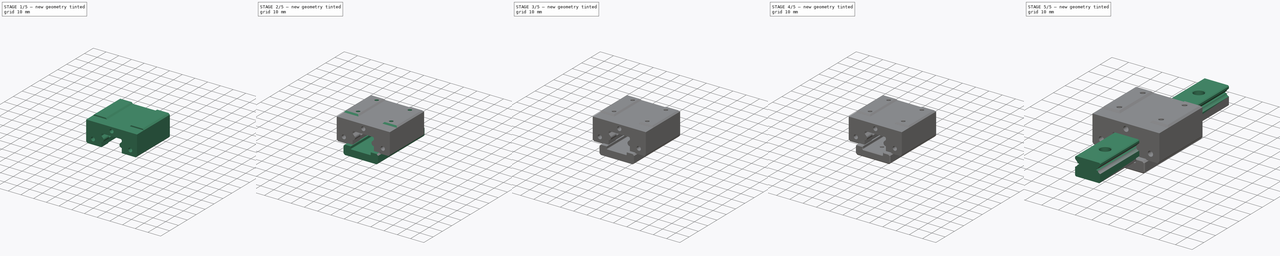
[diagram: build sequence overview — one tinted view per stage of 5, left to right]
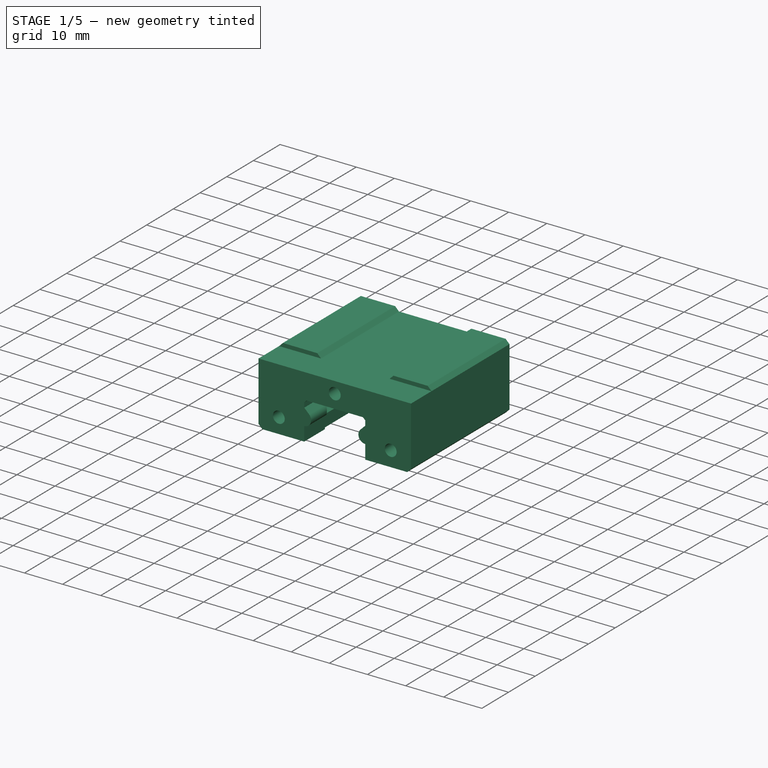
[diagram: stage 1 of 5 — iso view after this stage's code; geometry added in this stage tinted green]
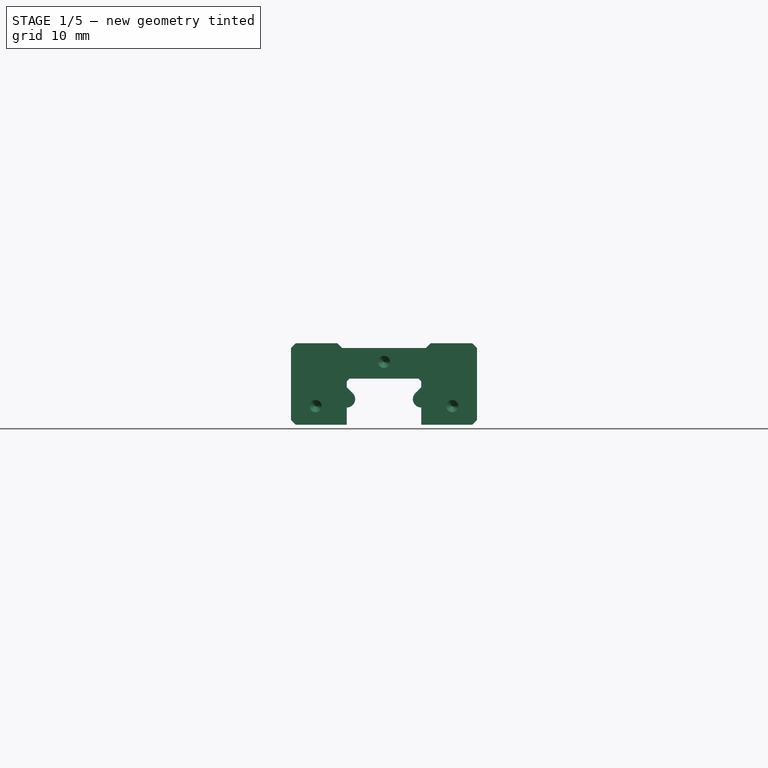
[diagram: stage 1 of 5 — front view after this stage's code; geometry added in this stage tinted green]
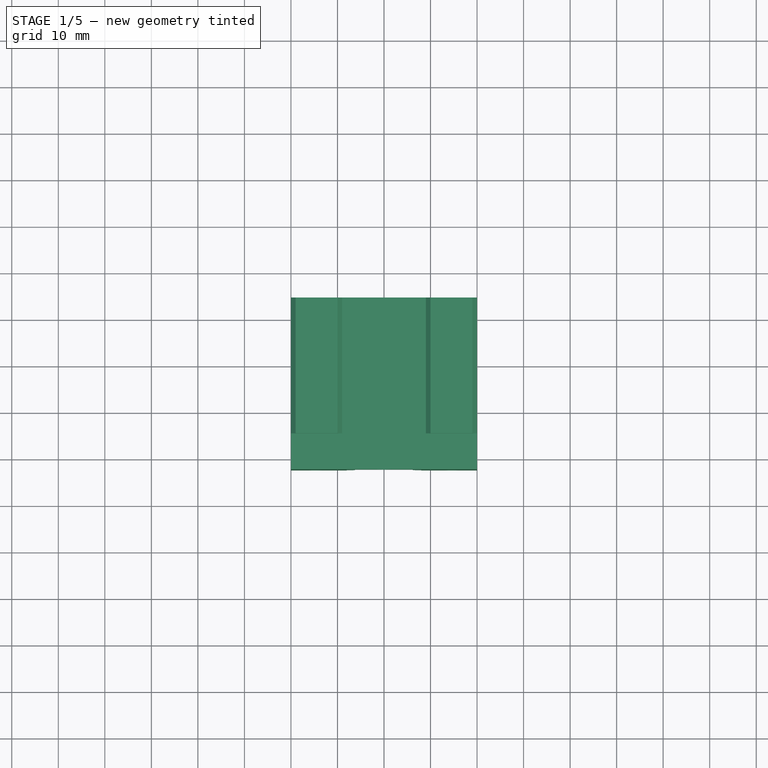
[diagram: stage 1 of 5 — top view after this stage's code; geometry added in this stage tinted green]
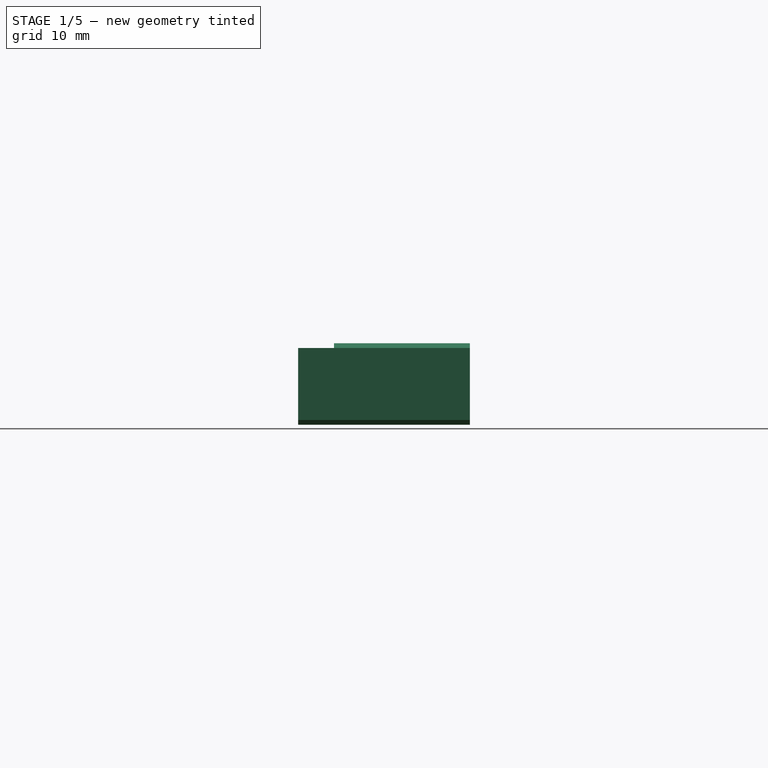
[diagram: stage 1 of 5 — right view after this stage's code; geometry added in this stage tinted green]
FCSTD DOCUMENT  (FreeCAD 0.18R4 (GitTag))
Label: _MGN15_Rail&Block-Test
License: CreativeCommons Attribution-ShareAlike
LicenseURL: http://creativecommons.org/licenses/by-sa/4.0/
objects: Sketcher::SketchObject×18, PartDesign::Chamfer×7, PartDesign::ShapeBinder×6, PartDesign::Pad×6, PartDesign::Pocket×5, PartDesign::Body×5, PartDesign::Hole×3, Part::Feature×2, App::Part×2, PartDesign::Fillet×1
note: 67 computed .brp shape members not serialized (recipe doc carries the construction recipe); baked Part::Feature solids carry a one-line shape summary decoded from their .brp

FEATURE [PartDesign::Body] Body004  label="RailConnector"
  Group = -> [ShapeBinder004,Sketch028,Pad003,Sketch030,Pocket005,Chamfer007,Chamfer008]
  Origin = -> Origin005
  Placement = pos=(0,-55,0) rot=(0,0,1;0rad)
  Tip = -> Chamfer008
FEATURE [Part::Feature] Body005  label="TappScrew_2.9x9.5_001"
  Placement = pos=(12.5,-20.65,5.8) rot=(0.983106,-0.129428,0.129428;1.58783rad)
  shape: bbox 5.623 x 11.65 x 5.623 mm, 20 faces (baked)
FEATURE [Part::Feature] Body006  label="TappScrew_2.9x9.5_002"
  Placement = pos=(-12.5,-20.65,5.8) rot=(0.935113,0.250563,-0.250563;1.63783rad)
  shape: bbox 5.623 x 11.65 x 5.623 mm, 20 faces (baked)
FEATURE [App::Part] Part001  label="Screws"
  Group = -> [Body005,Body006]
  Origin = -> Origin007
FEATURE [PartDesign::ShapeBinder] ShapeBinder002  label="MS_Slider1"
  Placement = pos=(0,0,0) rot=(1,0,0;1.5708rad)
  Support = -> [Sketch017]
  TraceSupport = false
FEATURE [PartDesign::ShapeBinder] ShapeBinder003  label="MS_Rail1"
  Placement = pos=(0,0,0) rot=(1,0,0;1.5708rad)
  Support = -> [Sketch]
  TraceSupport = false
FEATURE [Sketcher::SketchObject] Sketch022
  AttachmentOffset = pos=(0,0,14.6) rot=(0,0,1;0rad)
  ExternalGeometry = -> [ShapeBinder002,ShapeBinder003]
  MapMode = 5
  Placement = pos=(0,-14.6,-3.2e-15) rot=(1,0,0;1.5708rad)
  Support = -> [XZ_Plane003]
  expr: Constraints[4] = MasterSketch_BallsGap.Constraints.ball_dist
  expr: Constraints[32] = MasterSketch_BallsGap.Constraints.ball_dia / 2 - 0.2mm
  expr: Constraints[2] = MasterSketch_BallsGap.Constraints.ball_dia
  expr: AttachmentOffset.Base.z = Pad006.Length / 2
  sketch-geometry (24):
    g0: Circle [constr] CenterX=-8 CenterY=0 CenterZ=0 NormalX=0 NormalY=0 NormalZ=1 AngleXU=0 Radius=2
    g1: Circle [constr] CenterX=8 CenterY=0 CenterZ=0 NormalX=0 NormalY=0 NormalZ=1 AngleXU=0 Radius=2
    g2: LineSegment StartX=-8 StartY=-5.5 StartZ=0 EndX=-19 EndY=-5.5 EndZ=0
    g3: LineSegment StartX=-19 StartY=-5.5 StartZ=0 EndX=-20 EndY=-4.5 EndZ=0
    g4: LineSegment StartX=-20 StartY=-4.5 StartZ=0 EndX=-20 EndY=11 EndZ=0
    g5: LineSegment StartX=-20 StartY=11 StartZ=0 EndX=20 EndY=11 EndZ=0
    g6: LineSegment StartX=20 StartY=11 StartZ=0 EndX=20 EndY=-4.5 EndZ=0
    g7: LineSegment StartX=20 StartY=-4.5 StartZ=0 EndX=19 EndY=-5.5 EndZ=0
    g8: LineSegment StartX=19 StartY=-5.5 StartZ=0 EndX=8 EndY=-5.5 EndZ=0
    g9: ArcOfCircle CenterX=-8 CenterY=0 CenterZ=0 NormalX=0 NormalY=0 NormalZ=1 AngleXU=0 Radius=1.8 StartAngle=4.71239 EndAngle=7.06858
    g10: ArcOfCircle CenterX=8 CenterY=0 CenterZ=0 NormalX=0 NormalY=0 NormalZ=1 AngleXU=0 Radius=1.8 StartAngle=2.35619 EndAngle=4.71239
    g11: LineSegment StartX=-8 StartY=-5.5 StartZ=0 EndX=-8 EndY=-1.8 EndZ=0
    g12: LineSegment StartX=8 StartY=-5.5 StartZ=0 EndX=8 EndY=-1.8 EndZ=0
    g13: LineSegment StartX=-8 StartY=3.8 StartZ=0 EndX=-7.4 EndY=4.4 EndZ=0
    g14: LineSegment StartX=-7.4 StartY=4.4 StartZ=0 EndX=7.4 EndY=4.4 EndZ=0
    g15: LineSegment StartX=7.4 StartY=4.4 StartZ=0 EndX=8 EndY=3.8 EndZ=0
    g16: LineSegment StartX=8 StartY=3.8 StartZ=0 EndX=8 EndY=2.54558 EndZ=0
    g17: LineSegment [constr] StartX=-7 StartY=4 StartZ=0 EndX=-7.4 EndY=4.4 EndZ=0
    g18: Circle CenterX=-14.6795 CenterY=-1.5 CenterZ=0 NormalX=0 NormalY=0 NormalZ=1 AngleXU=0 Radius=1.55
    g19: Circle CenterX=14.6795 CenterY=-1.5 CenterZ=0 NormalX=0 NormalY=0 NormalZ=1 AngleXU=0 Radius=1.55
    g20: LineSegment StartX=-8 StartY=2.54558 StartZ=0 EndX=-6.7272 EndY=1.27278 EndZ=0
    g21: LineSegment StartX=8 StartY=2.54558 StartZ=0 EndX=6.72721 EndY=1.27279 EndZ=0
    g22: LineSegment StartX=-8 StartY=2.54558 StartZ=0 EndX=-8 EndY=3.8 EndZ=0
    g23: Circle CenterX=0 CenterY=8 CenterZ=0 NormalX=0 NormalY=0 NormalZ=1 AngleXU=0 Radius=1.55
  constraints (61):
    c: PointOnObject(g0,g-1)
    c: Symmetric(g0,g1,g-2)
    c: Diameter(g0) = 4
    c: Equal(g0,g1)
    c: DistanceX(g0,g1) = 16
    c: Coincident(g2,g3)
    c: Coincident(g3,g4)
    c: Coincident(g4,g5)
    c: Coincident(g5,g6)
    c: Coincident(g6,g7)
    c: Coincident(g7,g8)
    c: Horizontal(g2)
    c: Horizontal(g8)
    c: Coincident(g9,g0)
    c: Coincident(g10,g1)
    c: Coincident(g11,g2)
    c: Vertical(g11)
    c: Coincident(g12,g8)
    c: Vertical(g12)
    c: PointOnObject(g10,g12)
    c: PointOnObject(g9,g11)
    c: Coincident(g11,g9)
    c: Coincident(g12,g10)
    c: Coincident(g22,g13)
    c: Coincident(g13,g14)
    c: Coincident(g14,g15)
    c: Coincident(g15,g16)
    c: Vertical(g16)
    c: Angle(g13,g14) = 2.35619
    c: Angle(g14,g15) = 2.35619
    c: Symmetric(g13,g14,g-2)
    c: Perpendicular(g17,g13)
    c: Radius(g9) = 1.8
    c: Diameter(g18) = 3.1
    c: Equal(g18,g19)
    c: Perpendicular(g13,g20)
    c: Coincident(g10,g21)
    c: Coincident(g16,g21)
    c: Coincident(g21,g10)
    c: Coincident(g22,g20)
    c: Coincident(g9,g20)
    c: Vertical(g22)
    c: PointOnObject(g20,g11)
    c: Tangent(g9,g20)
    c: PointOnObject(g16,g12)
    c: Tangent(g21,g10)
    c: Equal(g22,g16)
    c: Perpendicular(g21,g15)
    c: Coincident(g-8,g2)
    c: Coincident(g3,g-9)
    c: Coincident(g18,g-3)
    c: Coincident(g19,g-10)
    c: Coincident(g7,g-7)
    c: Coincident(g-6,g6)
    c: Coincident(g5,g-5)
    c: Coincident(g4,g-4)
    c: Coincident(g17,g13)
    c: Coincident(g17,g-11)
    c: DistanceY(g17,g13) = 0.4
    c: Coincident(g23,g-13)
    c: Equal(g19,g23)
FEATURE [PartDesign::Pad] Pad002
  Length = 7.7
  Length2 = 100
  Placement = pos=(0,0,0) rot=(1,0,0;1.5708rad)
  Profile = -> Sketch022
  Type = 0
FEATURE [Sketcher::SketchObject] Sketch029
  ExternalGeometry = -> [Sketch022]
  MapMode = 5
  Support = -> [XY_Plane003]
  sketch-geometry (4):
    g0: LineSegment StartX=-9 StartY=-13.6 StartZ=0 EndX=-4 EndY=-18.6 EndZ=0
    g1: LineSegment StartX=-4 StartY=-18.6 StartZ=0 EndX=4 EndY=-18.6 EndZ=0
    g2: LineSegment StartX=4 StartY=-18.6 StartZ=0 EndX=9 EndY=-13.6 EndZ=0
    g3: LineSegment StartX=9 StartY=-13.6 StartZ=0 EndX=-9 EndY=-13.6 EndZ=0
  constraints (10):
    c: Coincident(g0,g1)
    c: Coincident(g1,g2)
    c: Coincident(g2,g3)
    c: Coincident(g3,g0)
    c: Symmetric(g0,g2,g-2)
    c: Symmetric(g0,g1,g-2)
    c: PointOnObject(g-3,g0)
    c: Angle(g0,g3) = 0.785398
    c: DistanceY(g-3,g0) = 1
    c: DistanceY(g0,g0) = 5
FEATURE [PartDesign::ShapeBinder] ShapeBinder
  Placement = pos=(0,0,0) rot=(1,0,0;1.5708rad)
  Support = -> [Sketch017]
  TraceSupport = false
FEATURE [Sketcher::SketchObject] Sketch034
  ExternalGeometry = -> [ShapeBinder]
  MapMode = 5
  Placement = pos=(0,0,0) rot=(1,0,0;1.5708rad)
  Support = -> [XZ_Plane009]
  sketch-geometry (26):
    g0: Circle CenterX=-16.7003 CenterY=5 CenterZ=0 NormalX=0 NormalY=0 NormalZ=1 AngleXU=0 Radius=2.15
    g1: Circle CenterX=16.7003 CenterY=5 CenterZ=0 NormalX=0 NormalY=0 NormalZ=1 AngleXU=0 Radius=2.15
    g2: LineSegment StartX=-9.45421 StartY=-1.41421 StartZ=0 EndX=-8.5 EndY=-2.36843 EndZ=0
    g3: LineSegment StartX=-8.5 StartY=-2.36843 StartZ=0 EndX=-8.5 EndY=-5.5 EndZ=0
    g4: LineSegment StartX=-8.5 StartY=-5.5 StartZ=0 EndX=-19 EndY=-5.5 EndZ=0
    g5: LineSegment StartX=-19 StartY=-5.5 StartZ=0 EndX=-20 EndY=-4.5 EndZ=0
    g6: LineSegment StartX=-20 StartY=-4.5 StartZ=0 EndX=-20 EndY=11 EndZ=0
    g7: LineSegment StartX=-20 StartY=11 StartZ=0 EndX=-19 EndY=12 EndZ=0
    g8: LineSegment StartX=-19 StartY=12 StartZ=0 EndX=-10 EndY=12 EndZ=0
    g9: LineSegment StartX=-10 StartY=12 StartZ=0 EndX=-9 EndY=11 EndZ=0
    g10: LineSegment StartX=-9 StartY=11 StartZ=0 EndX=9 EndY=11 EndZ=0
    g11: LineSegment StartX=9 StartY=11 StartZ=0 EndX=10 EndY=12 EndZ=0
    g12: LineSegment StartX=10 StartY=12 StartZ=0 EndX=19 EndY=12 EndZ=0
    g13: LineSegment StartX=19 StartY=12 StartZ=0 EndX=20 EndY=11 EndZ=0
    g14: LineSegment StartX=20 StartY=11 StartZ=0 EndX=20 EndY=-4.5 EndZ=0
    g15: LineSegment StartX=20 StartY=-4.5 StartZ=0 EndX=19 EndY=-5.5 EndZ=0
    g16: LineSegment StartX=19 StartY=-5.5 StartZ=0 EndX=8.5 EndY=-5.5 EndZ=0
    g17: LineSegment StartX=8.5 StartY=-5.5 StartZ=0 EndX=8.5 EndY=-2.36843 EndZ=0
    g18: LineSegment StartX=8.5 StartY=-2.36843 StartZ=0 EndX=9.45421 EndY=-1.41421 EndZ=0
    g19: ArcOfCircle CenterX=-8.04 CenterY=3.7e-15 CenterZ=0 NormalX=0 NormalY=0 NormalZ=1 AngleXU=0 Radius=2 StartAngle=1.80287 EndAngle=3.92699
    g20: ArcOfCircle CenterX=8.04 CenterY=1e-16 CenterZ=0 NormalX=0 NormalY=0 NormalZ=1 AngleXU=0 Radius=2 StartAngle=5.49779 EndAngle=7.6219
    g21: ArcOfCircle CenterX=7.5 CenterY=4 CenterZ=0 NormalX=0 NormalY=0 NormalZ=1 AngleXU=0 Radius=1 StartAngle=1.8e-15 EndAngle=1.5708
    g22: ArcOfCircle CenterX=-7.5 CenterY=4 CenterZ=0 NormalX=0 NormalY=0 NormalZ=1 AngleXU=0 Radius=1 StartAngle=1.5708 EndAngle=3.14159
    g23: LineSegment StartX=8.5 StartY=1.94638 StartZ=0 EndX=8.5 EndY=4 EndZ=0
    g24: LineSegment StartX=7.5 StartY=5 StartZ=0 EndX=-7.5 EndY=5 EndZ=0
    g25: LineSegment StartX=-8.5 StartY=4 StartZ=0 EndX=-8.5 EndY=1.94638 EndZ=0
  constraints (56):
    c: Coincident(g0,g-6)
    c: Coincident(g1,g-5)
    c: Equal(g1,g-5)
    c: Equal(g0,g-6)
    c: Tangent(g-3,g2) = -1.5708
    c: Coincident(g2,g3)
    c: Coincident(g3,g-22)
    c: Vertical(g3)
    c: Coincident(g3,g4)
    c: Coincident(g4,g-23)
    c: Coincident(g4,g5)
    c: Coincident(g5,g-24)
    c: Coincident(g5,g6)
    c: Coincident(g6,g-7)
    c: Coincident(g6,g7)
    c: Coincident(g7,g-8)
    c: Coincident(g7,g8)
    c: Coincident(g8,g-9)
    c: Coincident(g8,g9)
    c: Coincident(g9,g-10)
    c: Coincident(g9,g10)
    c: Coincident(g10,g-11)
    c: Coincident(g10,g11)
    c: Coincident(g11,g-12)
    c: Coincident(g11,g12)
    c: Coincident(g12,g-13)
    c: Coincident(g12,g13)
    c: Coincident(g13,g-14)
    c: Coincident(g13,g14)
    c: Coincident(g14,g-15)
    c: Coincident(g14,g15)
    c: Coincident(g15,g-16)
    c: Coincident(g15,g16)
    c: Coincident(g16,g-17)
    c: Coincident(g16,g17)
    c: Coincident(g17,g-18)
    c: Coincident(g17,g18)
    c: Coincident(g18,g-4)
    c: Coincident(g19,g2)
    c: Coincident(g19,g-3)
    c: Equal(g-3,g19)
    c: Coincident(g20,g18)
    c: Coincident(g20,g-4)
    c: Equal(g-4,g20)
    c: Coincident(g21,g-19)
    c: Coincident(g21,g-19)
    c: Coincident(g22,g-20)
    c: Coincident(g22,g-20)
    c: Equal(g-20,g22)
    c: Equal(g-19,g21)
    c: Coincident(g23,g20)
    c: Coincident(g23,g21)
    c: Coincident(g24,g21)
    c: Coincident(g24,g22)
    c: Coincident(g25,g22)
    c: Coincident(g25,g19)
FEATURE [PartDesign::Pad] Pad006
  Length = 29.2
  Length2 = 100
  Midplane = true
  Placement = pos=(0,0,0) rot=(1,0,0;1.5708rad)
  Profile = -> Sketch034
  Type = 0
  expr: Length = MasterSketch_BallsGap.Constraints.ball_dia * 7.3
FEATURE [Sketcher::SketchObject] Sketch035
  AttachmentOffset = pos=(0,0,14.6) rot=(0,0,1;0rad)
  ExternalGeometry = -> [ShapeBinder]
  MapMode = 5
  Placement = pos=(0,-14.6,3.2e-15) rot=(1,0,0;1.5708rad)
  Support = -> [XZ_Plane009]
  expr: AttachmentOffset.Base.z = Pad006.Length / 2
  sketch-geometry (3):
    g0: Circle CenterX=-14.6795 CenterY=-1.5 CenterZ=0 NormalX=0 NormalY=0 NormalZ=1 AngleXU=0 Radius=1.5
    g1: Circle CenterX=14.6795 CenterY=-1.5 CenterZ=0 NormalX=0 NormalY=0 NormalZ=1 AngleXU=0 Radius=1.5
    g2: Circle CenterX=0 CenterY=8 CenterZ=0 NormalX=0 NormalY=0 NormalZ=1 AngleXU=0 Radius=1.5
  constraints (6):
    c: Coincident(g0,g-3)
    c: Coincident(g1,g-4)
    c: Equal(g1,g-4)
    c: Equal(g0,g-3)
    c: Coincident(g2,g-5)
    c: Equal(g2,g-5)
FEATURE [Sketcher::SketchObject] Sketch036
  AttachmentOffset = pos=(0,0,-14.6) rot=(0,1,0;3.14159rad)
  ExternalGeometry = -> [ShapeBinder]
  MapMode = 5
  Placement = pos=(0,14.6,-3.2e-15) rot=(0,0.707107,0.707107;3.14159rad)
  Support = -> [XZ_Plane009]
  expr: AttachmentOffset.Base.z = -Pad006.Length / 2
  sketch-geometry (3):
    g0: Circle CenterX=14.6795 CenterY=-1.5 CenterZ=0 NormalX=0 NormalY=0 NormalZ=1 AngleXU=0 Radius=1.5
    g1: Circle CenterX=-14.6795 CenterY=-1.5 CenterZ=0 NormalX=0 NormalY=0 NormalZ=1 AngleXU=0 Radius=1.5
    g2: Circle CenterX=1e-15 CenterY=8 CenterZ=0 NormalX=0 NormalY=0 NormalZ=1 AngleXU=0 Radius=1.5
  constraints (6):
    c: Coincident(g0,g-3)
    c: Coincident(g1,g-4)
    c: Equal(g1,g-4)
    c: Equal(g0,g-3)
    c: Coincident(g2,g-5)
    c: Equal(g2,g-5)
FEATURE [PartDesign::Hole] Hole
  BaseFeature = -> Pad006
  Depth = 10
  DepthType = 0
  Diameter = 2.6
  DrillPoint = 1
  DrillPointAngle = 90
  HoleCutCountersinkAngle = 90
  HoleCutDepth = 0
  HoleCutDiameter = 0
  HoleCutType = 0
  ModelActualThread = false
  Placement = pos=(0,0,0) rot=(1,0,0;1.5708rad)
  Profile = -> Sketch035
  Tapered = false
  TaperedAngle = 90
  ThreadAngle = 0
  ThreadClass = 0
  ThreadCutOffInner = 0
  ThreadCutOffOuter = 0
  ThreadDirection = 0
  ThreadFit = 0
  ThreadPitch = 0
  ThreadSize = 0
  ThreadType = 0
  Threaded = false
FEATURE [PartDesign::Body] Body001002  label="Block"
  Group = -> [ShapeBinder,Sketch034,Pad006,Sketch035,Sketch036,Hole,Hole001,Sketch037,Hole002,Chamfer,Chamfer011]
  Origin = -> Origin009
  Tip = -> Chamfer011
FEATURE [PartDesign::Pocket] Pocket
  BaseFeature = -> Pad002
  Length = 5
  Length2 = 100
  Midplane = true
  Placement = pos=(0,0,0) rot=(1,0,0;1.5708rad)
  Profile = -> Sketch029
  Type = 0
FEATURE [Sketcher::SketchObject] Sketch038
  AttachmentOffset = pos=(-7.96,0,0) rot=(0,1,0;0.523599rad)
  MapMode = 5
  Placement = pos=(-7.96,0,0) rot=(0,1,0;0.523599rad)
  Support = -> [XY_Plane003]
  expr: Constraints[0] = Pad006.Length / 2
  expr: AttachmentOffset.Base.x = -(MasterSketch_BallsGap.Constraints.ball_dist - Sketch002.Constraints.gap_len / 2) / 2
  sketch-geometry (1):
    g0: ArcOfCircle CenterX=-5 CenterY=-14.6 CenterZ=0 NormalX=0 NormalY=0 NormalZ=1 AngleXU=0 Radius=5 StartAngle=3.14159 EndAngle=6.28319
  constraints (5):
    c: DistanceY(g0,g-1) = 14.6
    c: PointOnObject(g0,g-2)
    c: Horizontal(g0,g0)
    c: Horizontal(g0,g0)
    c: Diameter(g0) = 10
FEATURE [PartDesign::Body] Body002  label="EndCap1"
  Group = -> [ShapeBinder002,ShapeBinder003,Sketch022,Pad002,Sketch029,Pocket,Sketch038]
  Origin = -> Origin003
  Tip = -> Pocket
FEATURE [App::Part] Part  label="Slider"
  Group = -> [Body002,Body001002]
  Origin = -> Origin001
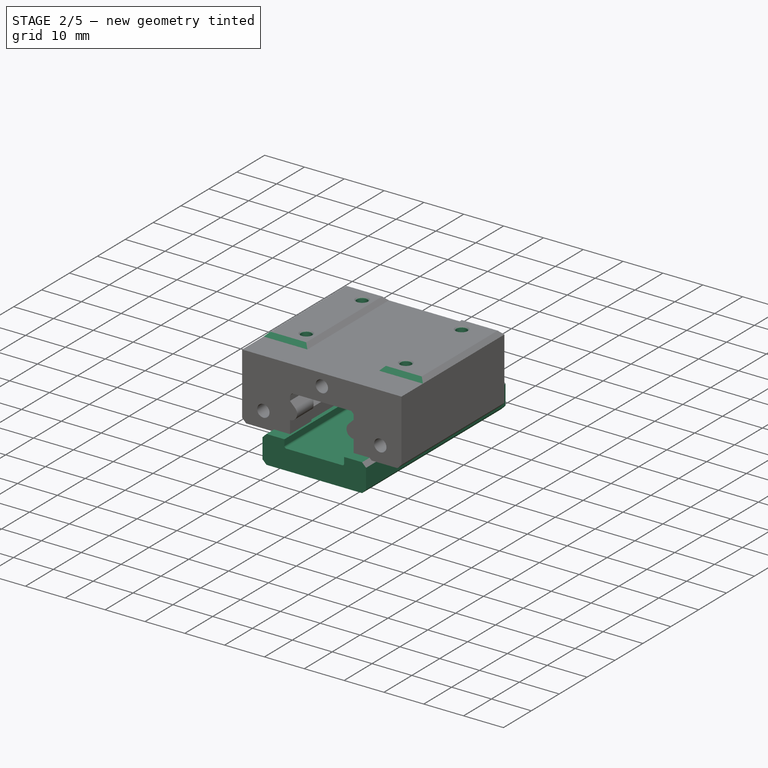
[diagram: stage 2 of 5 — iso view after this stage's code; geometry added in this stage tinted green]
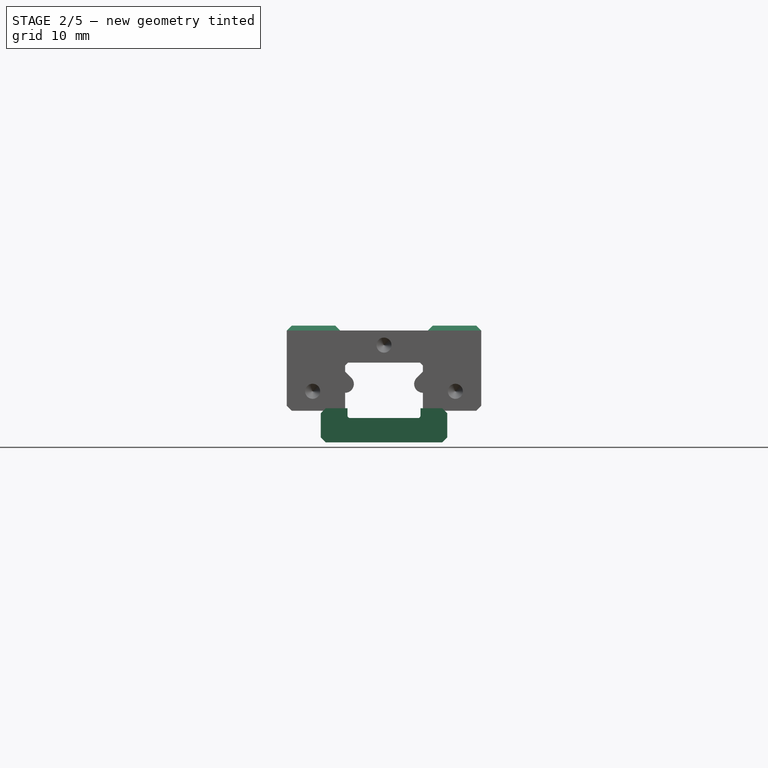
[diagram: stage 2 of 5 — front view after this stage's code; geometry added in this stage tinted green]
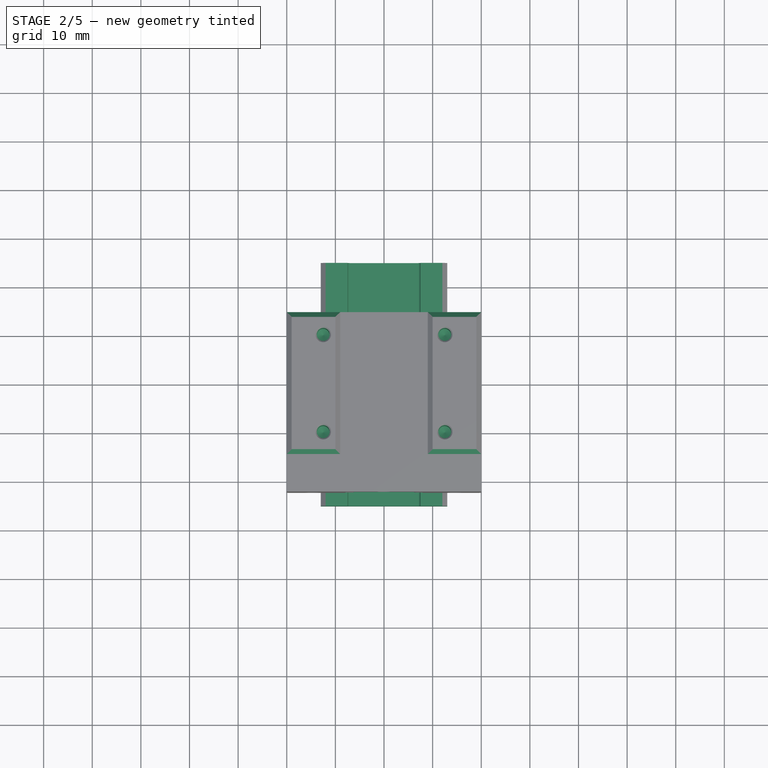
[diagram: stage 2 of 5 — top view after this stage's code; geometry added in this stage tinted green]
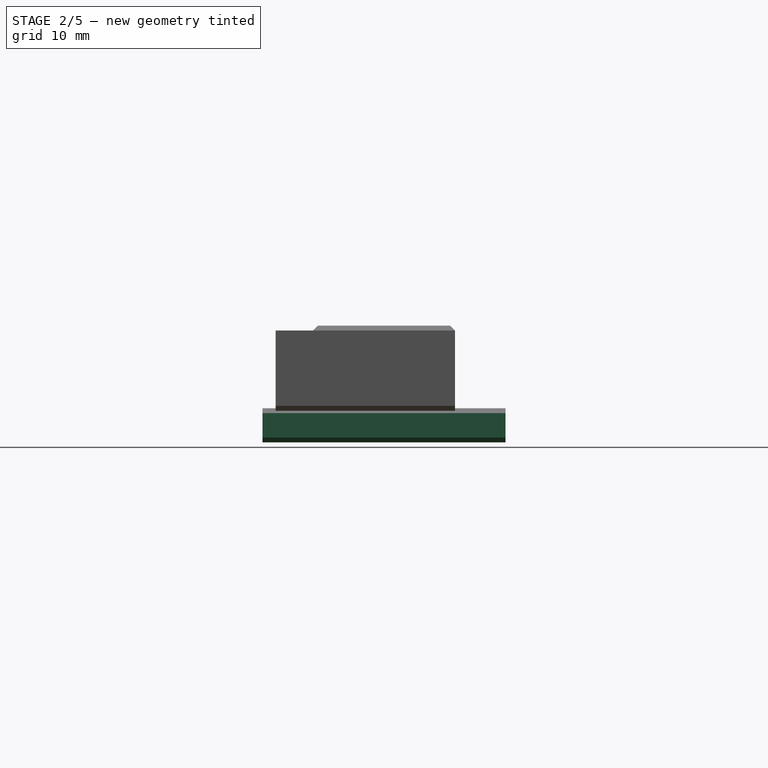
[diagram: stage 2 of 5 — right view after this stage's code; geometry added in this stage tinted green]
FEATURE [PartDesign::Body] Body007  label="RailEndPiece"
  Group = -> [ShapeBinder005,Sketch031,Pad004,Sketch032,Pad005,Sketch033,Pocket006,Fillet,Chamfer009,Chamfer010]
  Origin = -> Origin008
  Placement = pos=(0,55,0) rot=(0,0,1;0rad)
  Tip = -> Chamfer010
FEATURE [PartDesign::ShapeBinder] ShapeBinder004
  Placement = pos=(0,0,0) rot=(1,0,0;1.5708rad)
  Support = -> [Sketch]
  TraceSupport = false
FEATURE [Sketcher::SketchObject] Sketch028
  ExternalGeometry = -> [ShapeBinder004]
  MapMode = 5
  Placement = pos=(0,0,0) rot=(1,0,0;1.5708rad)
  Support = -> [XZ_Plane005]
  sketch-geometry (14):
    g0: LineSegment StartX=-7.5 StartY=-5 StartZ=0 EndX=-7.5 EndY=-6.5 EndZ=0
    g1: ArcOfCircle CenterX=-7 CenterY=-6.5 CenterZ=0 NormalX=0 NormalY=0 NormalZ=1 AngleXU=0 Radius=0.5 StartAngle=3.14159 EndAngle=4.71239
    g2: LineSegment StartX=-7 StartY=-7 StartZ=0 EndX=7 EndY=-7 EndZ=0
    g3: ArcOfCircle CenterX=7 CenterY=-6.5 CenterZ=0 NormalX=0 NormalY=0 NormalZ=1 AngleXU=0 Radius=0.5 StartAngle=4.71239 EndAngle=6.28319
    g4: LineSegment StartX=7.5 StartY=-6.5 StartZ=0 EndX=7.5 EndY=-5 EndZ=0
    g5: LineSegment StartX=7.5 StartY=-5 StartZ=0 EndX=12 EndY=-5 EndZ=0
    g6: LineSegment StartX=13 StartY=-6 StartZ=0 EndX=13 EndY=-11 EndZ=0
    g7: LineSegment StartX=12 StartY=-12 StartZ=0 EndX=-12 EndY=-12 EndZ=0
    g8: LineSegment StartX=-13 StartY=-11 StartZ=0 EndX=-13 EndY=-6 EndZ=0
    g9: LineSegment StartX=-12 StartY=-5 StartZ=0 EndX=-7.5 EndY=-5 EndZ=0
    g10: LineSegment StartX=12 StartY=-5 StartZ=0 EndX=13 EndY=-6 EndZ=0
    g11: LineSegment StartX=13 StartY=-11 StartZ=0 EndX=12 EndY=-12 EndZ=0
    g12: LineSegment StartX=-13 StartY=-11 StartZ=0 EndX=-12 EndY=-12 EndZ=0
    g13: LineSegment StartX=-13 StartY=-6 StartZ=0 EndX=-12 EndY=-5 EndZ=0
  constraints (35):
    c: Tangent(g0,g1) = -1.5708
    c: Tangent(g1,g2) = -1.5708
    c: Tangent(g2,g3) = -1.5708
    c: Tangent(g3,g4) = -1.5708
    c: Coincident(g4,g5)
    c: Horizontal(g5)
    c: Vertical(g6)
    c: Vertical(g8)
    c: Coincident(g9,g0)
    c: Horizontal(g9)
    c: Coincident(g0,g-3)
    c: Coincident(g1,g-4)
    c: Coincident(g2,g-5)
    c: Coincident(g3,g-6)
    c: Equal(g0,g4)
    c: Coincident(g9,g13)
    c: Coincident(g13,g8)
    c: Coincident(g7,g12)
    c: Coincident(g8,g12)
    c: Coincident(g6,g11)
    c: Coincident(g7,g11)
    c: Coincident(g6,g10)
    c: Coincident(g10,g5)
    c: DistanceY(g7,g2) = 5
    c: DistanceX(g8,g6) = 26
    c: Symmetric(g8,g6,g-2)
    c: Angle(g13,g9) = 2.35619
    c: Angle(g5,g10) = 2.35619
    c: Angle(g7,g12) = 2.35619
    c: Angle(g11,g7) = 2.35619
    c: Equal(g13,g12)
    c: Equal(g12,g10)
    c: Equal(g10,g11)
    c: DistanceY(g6,g5) = 1
    c: DistanceY(g1,g9) = 2
FEATURE [PartDesign::Pad] Pad003
  Length = 50
  Length2 = 100
  Midplane = true
  Placement = pos=(0,0,0) rot=(1,0,0;1.5708rad)
  Profile = -> Sketch028
  Type = 0
FEATURE [PartDesign::Hole] Hole001
  BaseFeature = -> Hole
  Depth = 10
  DepthType = 0
  Diameter = 2.6
  DrillPoint = 1
  DrillPointAngle = 90
  HoleCutCountersinkAngle = 90
  HoleCutDepth = 0
  HoleCutDiameter = 0
  HoleCutType = 0
  ModelActualThread = false
  Placement = pos=(0,0,0) rot=(1,0,0;1.5708rad)
  Profile = -> Sketch036
  Tapered = false
  TaperedAngle = 90
  ThreadAngle = 0
  ThreadClass = 0
  ThreadCutOffInner = 0
  ThreadCutOffOuter = 0
  ThreadDirection = 0
  ThreadFit = 0
  ThreadPitch = 0
  ThreadSize = 0
  ThreadType = 0
  Threaded = false
FEATURE [Sketcher::SketchObject] Sketch037
  AttachmentOffset = pos=(0,0,12) rot=(0,0,1;0rad)
  MapMode = 5
  Placement = pos=(0,0,12) rot=(0,0,1;0rad)
  Support = -> [XY_Plane009]
  expr: AttachmentOffset.Base.z = Sketch017.Constraints.hight2
  sketch-geometry (8):
    g0: LineSegment [constr] StartX=-12.5 StartY=10 StartZ=0 EndX=12.5 EndY=10 EndZ=0
    g1: LineSegment [constr] StartX=12.5 StartY=10 StartZ=0 EndX=12.5 EndY=-10 EndZ=0
    g2: LineSegment [constr] StartX=12.5 StartY=-10 StartZ=0 EndX=-12.5 EndY=-10 EndZ=0
    g3: LineSegment [constr] StartX=-12.5 StartY=-10 StartZ=0 EndX=-12.5 EndY=10 EndZ=0
    g4: Circle CenterX=-12.5 CenterY=10 CenterZ=0 NormalX=0 NormalY=0 NormalZ=1 AngleXU=0 Radius=1.3
    g5: Circle CenterX=12.5 CenterY=10 CenterZ=0 NormalX=0 NormalY=0 NormalZ=1 AngleXU=0 Radius=1.3
    g6: Circle CenterX=12.5 CenterY=-10 CenterZ=0 NormalX=0 NormalY=0 NormalZ=1 AngleXU=0 Radius=1.3
    g7: Circle CenterX=-12.5 CenterY=-10 CenterZ=0 NormalX=0 NormalY=0 NormalZ=1 AngleXU=0 Radius=1.3
  constraints (19):
    c: Coincident(g0,g1)
    c: Coincident(g1,g2)
    c: Coincident(g2,g3)
    c: Coincident(g3,g0)
    c: Horizontal(g0)
    c: Horizontal(g2)
    c: Vertical(g1)
    c: Vertical(g3)
    c: Symmetric(g0,g2,g-1)
    c: Coincident(g4,g0)
    c: Coincident(g5,g0)
    c: Coincident(g6,g1)
    c: Coincident(g7,g2)
    c: Equal(g4,g5)
    c: Equal(g5,g6)
    c: Equal(g6,g7)
    c: Diameter(g6) = 2.6
    c: DistanceY(g3,g3) = 20
    c: DistanceX(g0,g0) = 25
FEATURE [PartDesign::Hole] Hole002
  BaseFeature = -> Hole001
  Depth = 10
  DepthType = 0
  Diameter = 2.6
  DrillPoint = 1
  DrillPointAngle = 118
  HoleCutCountersinkAngle = 90
  HoleCutDepth = 0
  HoleCutDiameter = 0
  HoleCutType = 0
  ModelActualThread = false
  Placement = pos=(0,0,0) rot=(1,0,0;1.5708rad)
  Profile = -> Sketch037
  Tapered = false
  TaperedAngle = 90
  ThreadAngle = 0
  ThreadClass = 0
  ThreadCutOffInner = 0
  ThreadCutOffOuter = 0
  ThreadDirection = 0
  ThreadFit = 0
  ThreadPitch = 0
  ThreadSize = 0
  ThreadType = 0
  Threaded = false
FEATURE [PartDesign::Chamfer] Chamfer
  Base = -> Hole002 [Edge28,Edge20,Edge46,Edge54]
  BaseFeature = -> Hole002
  Placement = pos=(0,0,0) rot=(1,0,0;1.5708rad)
  Size = 0.99
FEATURE [PartDesign::Chamfer] Chamfer011
  Base = -> Chamfer [Edge97,Edge98,Edge106,Edge105,Edge101,Edge103,Edge102,Edge82,Edge85,Edge58,Edge64,Edge87,Edge95,Edge11,Edge13,Edge22,Edge24,Edge26,Edge27,Edge28,Edge29,Edge25]
  BaseFeature = -> Chamfer
  Placement = pos=(0,0,0) rot=(1,0,0;1.5708rad)
  Size = 0.3
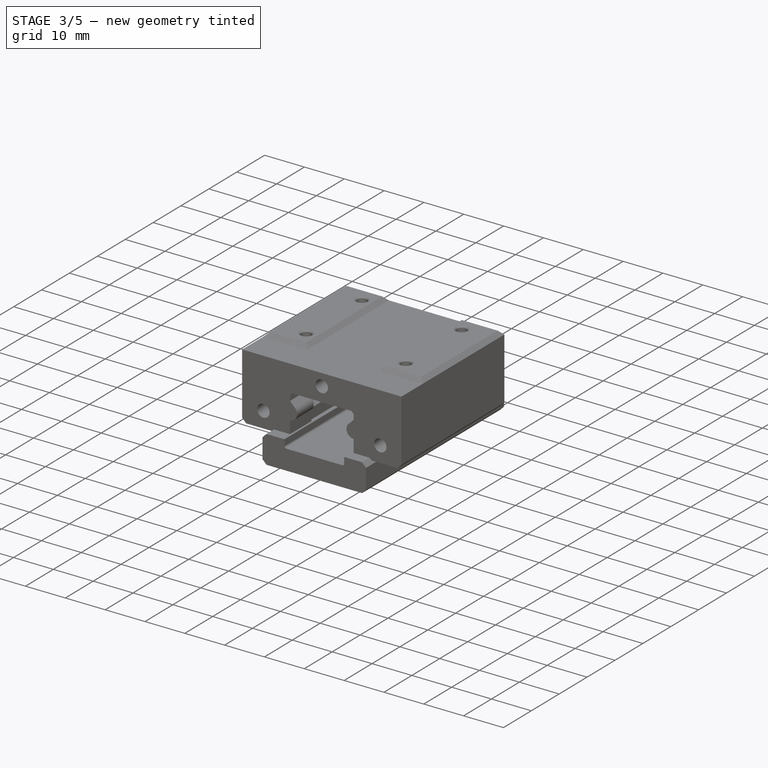
[diagram: stage 3 of 5 — iso view after this stage's code; geometry added in this stage tinted green]
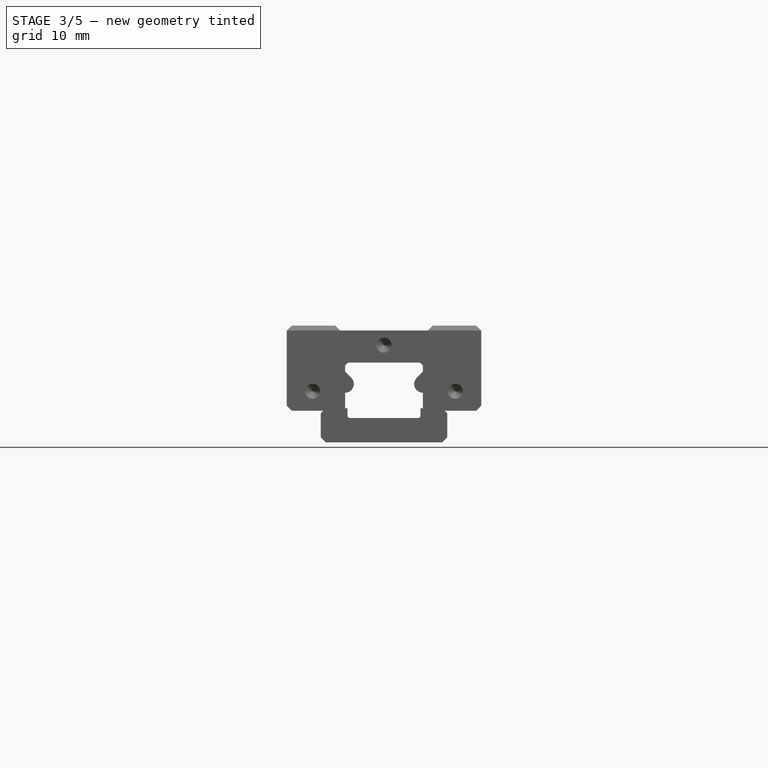
[diagram: stage 3 of 5 — front view after this stage's code; geometry added in this stage tinted green]
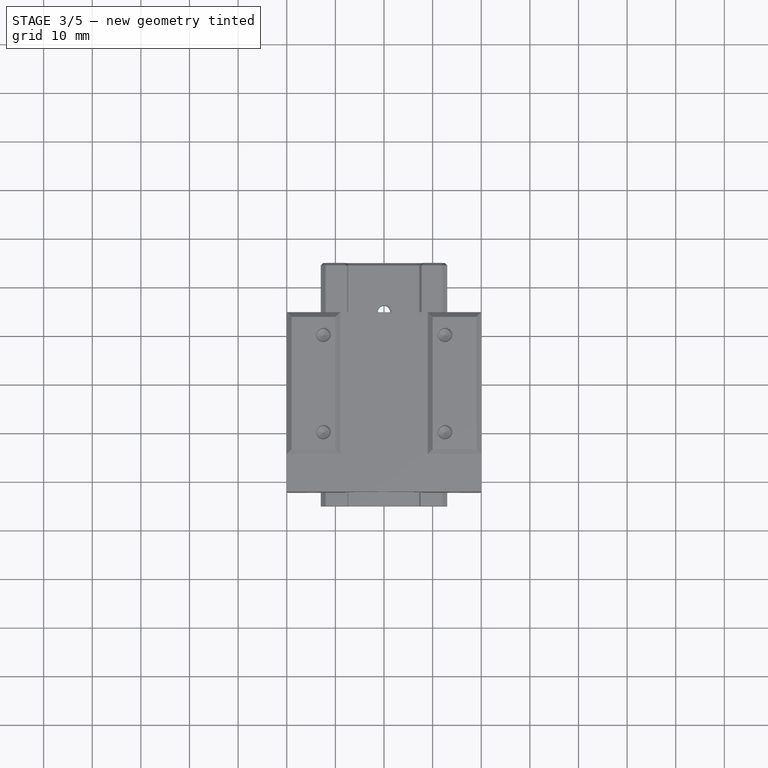
[diagram: stage 3 of 5 — top view after this stage's code; geometry added in this stage tinted green]
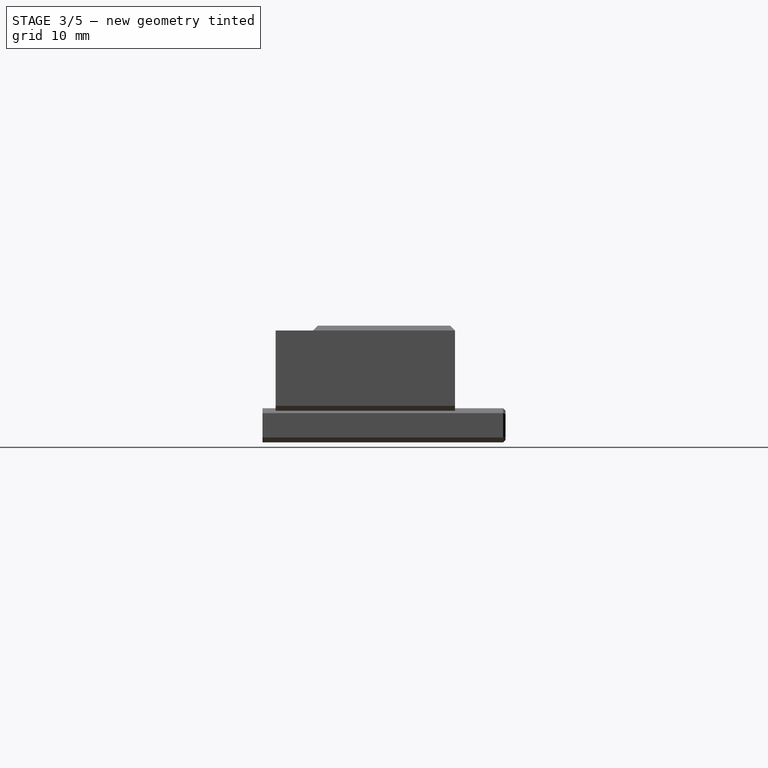
[diagram: stage 3 of 5 — right view after this stage's code; geometry added in this stage tinted green]
FEATURE [PartDesign::Body] Body  label="Rail"
  Group = -> [ShapeBinder001,Sketch014,Pad,Sketch015,Pocket002,Sketch016,Pocket003,Chamfer002]
  Origin = -> Origin
  Tip = -> Chamfer002
FEATURE [PartDesign::ShapeBinder] ShapeBinder005
  Placement = pos=(0,0,0) rot=(1,0,0;1.5708rad)
  Support = -> [Sketch]
  TraceSupport = false
FEATURE [Sketcher::SketchObject] Sketch031
  ExternalGeometry = -> [ShapeBinder005]
  MapMode = 5
  Placement = pos=(0,0,0) rot=(1,0,0;1.5708rad)
  Support = -> [XZ_Plane008]
  sketch-geometry (14):
    g0: LineSegment StartX=-7.5 StartY=-5 StartZ=0 EndX=-7.5 EndY=-6.5 EndZ=0
    g1: LineSegment StartX=-7 StartY=-7 StartZ=0 EndX=7 EndY=-7 EndZ=0
    g2: LineSegment StartX=7.5 StartY=-6.5 StartZ=0 EndX=7.5 EndY=-5 EndZ=0
    g3: LineSegment StartX=7.5 StartY=-5 StartZ=0 EndX=12 EndY=-5 EndZ=0
    g4: LineSegment StartX=12 StartY=-5 StartZ=0 EndX=13 EndY=-6 EndZ=0
    g5: LineSegment StartX=13 StartY=-6 StartZ=0 EndX=13 EndY=-11 EndZ=0
    g6: LineSegment StartX=13 StartY=-11 StartZ=0 EndX=12 EndY=-12 EndZ=0
    g7: LineSegment StartX=12 StartY=-12 StartZ=0 EndX=-12 EndY=-12 EndZ=0
    g8: LineSegment StartX=-12 StartY=-12 StartZ=0 EndX=-13 EndY=-11 EndZ=0
    g9: LineSegment StartX=-13 StartY=-11 StartZ=0 EndX=-13 EndY=-6 EndZ=0
    g10: LineSegment StartX=-13 StartY=-6 StartZ=0 EndX=-12 EndY=-5 EndZ=0
    g11: LineSegment StartX=-12 StartY=-5 StartZ=0 EndX=-7.5 EndY=-5 EndZ=0
    g12: ArcOfCircle CenterX=-7 CenterY=-6.5 CenterZ=0 NormalX=0 NormalY=0 NormalZ=1 AngleXU=0 Radius=0.5 StartAngle=3.14159 EndAngle=4.71239
    g13: ArcOfCircle CenterX=7 CenterY=-6.5 CenterZ=0 NormalX=0 NormalY=0 NormalZ=1 AngleXU=0 Radius=0.5 StartAngle=4.71239 EndAngle=6.28319
  constraints (38):
    c: Horizontal(g1)
    c: Coincident(g2,g3)
    c: Coincident(g3,g4)
    c: Coincident(g4,g5)
    c: Vertical(g5)
    c: Coincident(g5,g6)
    c: Coincident(g6,g7)
    c: Coincident(g7,g8)
    c: Coincident(g8,g9)
    c: Coincident(g9,g10)
    c: Coincident(g10,g11)
    c: Coincident(g11,g0)
    c: Vertical(g0)
    c: Vertical(g9)
    c: Symmetric(g8,g6,g-2)
    c: Symmetric(g5,g8,g-2)
    c: Equal(g9,g5)
    c: PointOnObject(g-3,g0)
    c: Vertical(g2)
    c: PointOnObject(g-4,g1)
    c: Tangent(g0,g12) = -1.5708
    c: Tangent(g1,g12) = -1.5708
    c: Tangent(g1,g13) = -1.5708
    c: Tangent(g2,g13) = -1.5708
    c: Equal(g12,g13)
    c: Coincident(g2,g-5)
    c: Equal(g2,g0)
    c: Horizontal(g11)
    c: Horizontal(g3)
    c: DistanceX(g8,g5) = 26
    c: DistanceY(g1,g0) = 2
    c: DistanceY(g7,g1) = 5
    c: Angle(g4,g5) = 2.35619
    c: Angle(g5,g6) = 2.35619
    c: Equal(g4,g6)
    c: Equal(g6,g8)
    c: Equal(g8,g10)
    c: DistanceY(g4,g3) = 1
FEATURE [PartDesign::Pad] Pad004
  Length = 25
  Length2 = 100
  Placement = pos=(0,0,0) rot=(1,0,0;1.5708rad)
  Profile = -> Sketch031
  Type = 0
FEATURE [Sketcher::SketchObject] Sketch030
  MapMode = 5
  Support = -> [XY_Plane005]
  sketch-geometry (2):
    g0: Circle CenterX=0 CenterY=15 CenterZ=0 NormalX=0 NormalY=0 NormalZ=1 AngleXU=0 Radius=1.25
    g1: Circle CenterX=0 CenterY=-15 CenterZ=0 NormalX=0 NormalY=0 NormalZ=1 AngleXU=0 Radius=1.25
  constraints (5):
    c: Symmetric(g0,g1,g-1)
    c: PointOnObject(g1,g-2)
    c: DistanceY(g1,g0) = 30
    c: Diameter(g0) = 2.5
    c: Equal(g0,g1)
FEATURE [PartDesign::Pocket] Pocket005
  BaseFeature = -> Pad003
  Length = 5
  Length2 = 100
  Placement = pos=(0,0,0) rot=(1,0,0;1.5708rad)
  Profile = -> Sketch030
  Type = 1
FEATURE [PartDesign::Chamfer] Chamfer007
  Base = -> Pocket005 [Edge36,Edge43,Edge41,Edge40,Edge35,Edge34]
  BaseFeature = -> Pocket005
  Placement = pos=(0,0,0) rot=(1,0,0;1.5708rad)
  Size = 0.3
FEATURE [PartDesign::Chamfer] Chamfer008
  Base = -> Chamfer007 [Face18,Face1]
  BaseFeature = -> Chamfer007
  Placement = pos=(0,0,0) rot=(1,0,0;1.5708rad)
  Size = 0.5
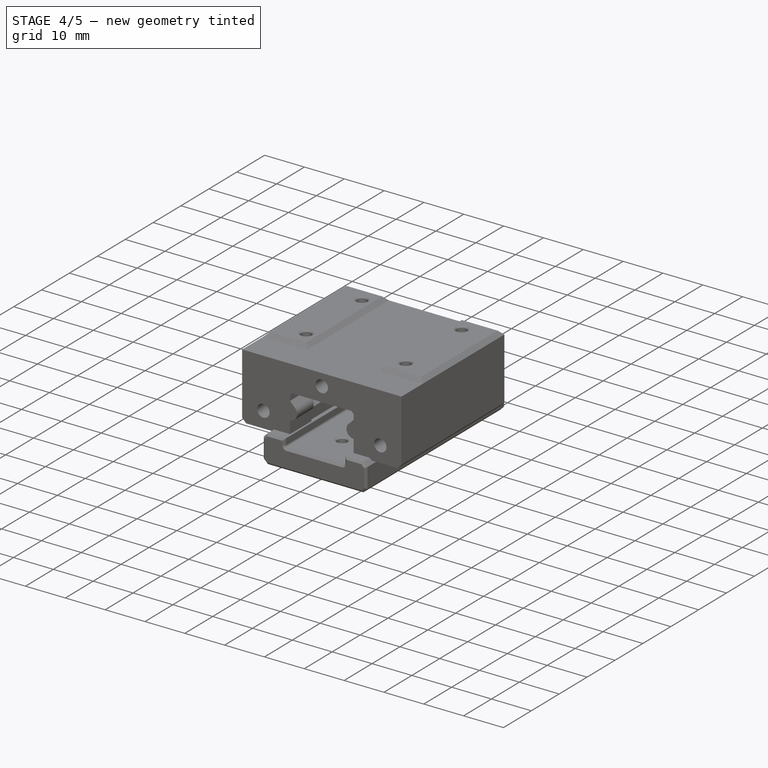
[diagram: stage 4 of 5 — iso view after this stage's code; geometry added in this stage tinted green]
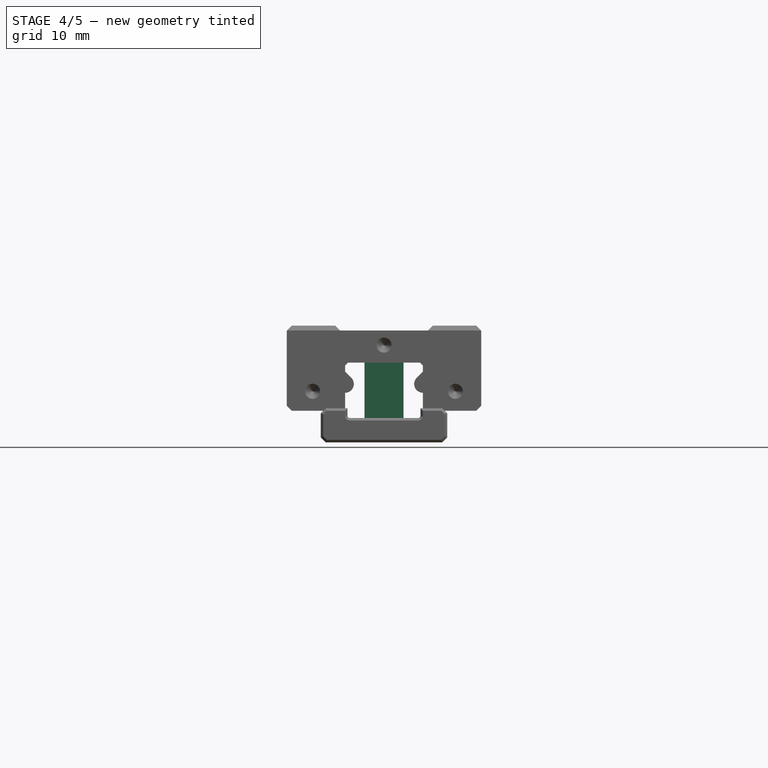
[diagram: stage 4 of 5 — front view after this stage's code; geometry added in this stage tinted green]
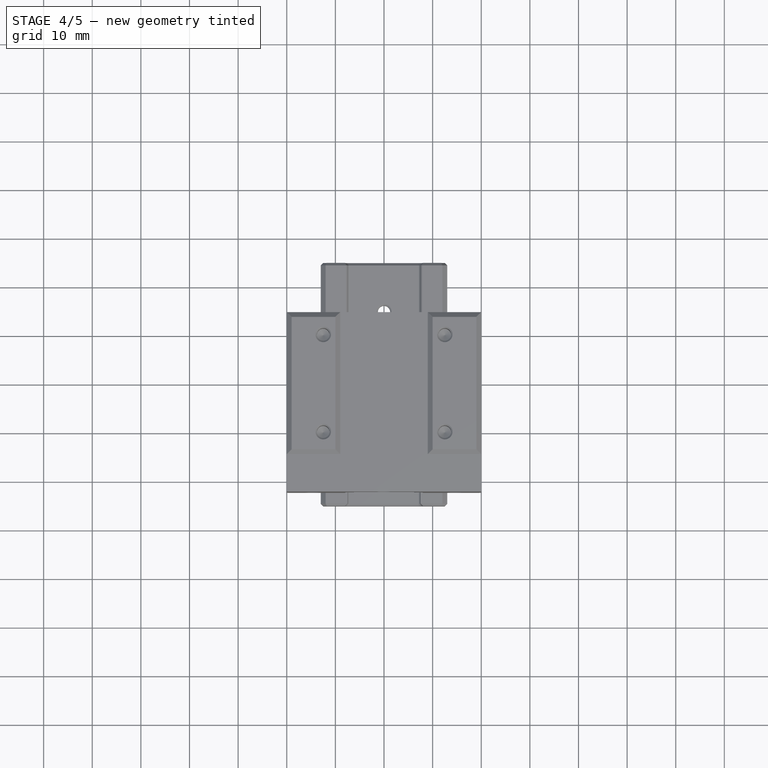
[diagram: stage 4 of 5 — top view after this stage's code; geometry added in this stage tinted green]
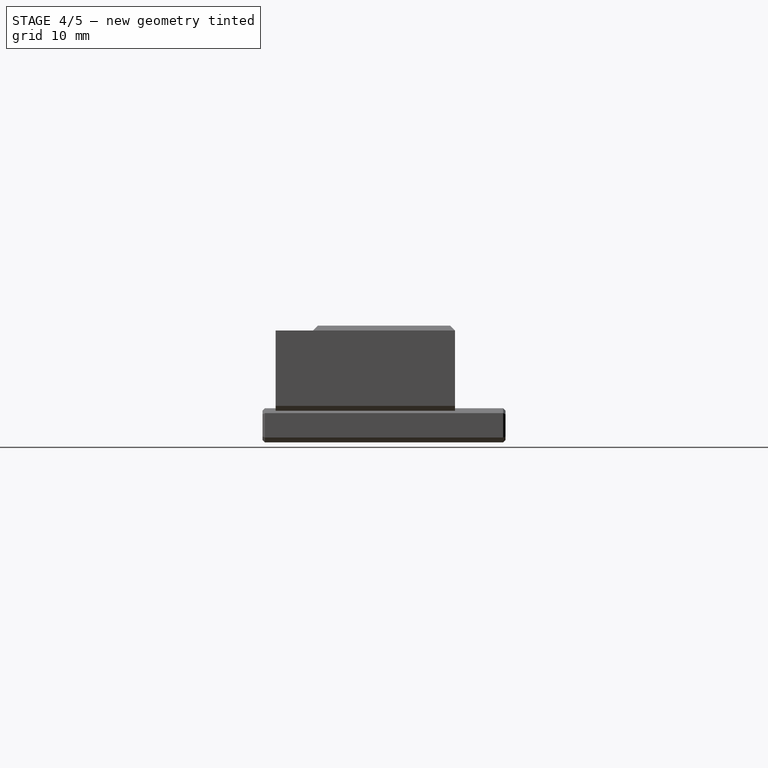
[diagram: stage 4 of 5 — right view after this stage's code; geometry added in this stage tinted green]
FEATURE [Sketcher::SketchObject] Sketch032
  ExternalGeometry = -> [ShapeBinder005]
  MapMode = 5
  Placement = pos=(0,0,0) rot=(1,0,0;1.5708rad)
  Support = -> [XZ_Plane008]
  sketch-geometry (4):
    g0: LineSegment StartX=-4 StartY=7 StartZ=0 EndX=4 EndY=7 EndZ=0
    g1: LineSegment StartX=4 StartY=7 StartZ=0 EndX=4 EndY=-12 EndZ=0
    g2: LineSegment StartX=4 StartY=-12 StartZ=0 EndX=-4 EndY=-12 EndZ=0
    g3: LineSegment StartX=-4 StartY=-12 StartZ=0 EndX=-4 EndY=7 EndZ=0
  constraints (11):
    c: Coincident(g0,g1)
    c: Coincident(g1,g2)
    c: Coincident(g2,g3)
    c: Coincident(g3,g0)
    c: Horizontal(g0)
    c: Vertical(g1)
    c: Vertical(g3)
    c: DistanceY(g-3,g0) = 3
    c: DistanceY(g2,g-4) = 5
    c: Symmetric(g2,g1,g-2)
    c: DistanceX(g0,g0) = 8
FEATURE [PartDesign::Pad] Pad005
  BaseFeature = -> Pad004
  Length = 5
  Length2 = 100
  Placement = pos=(0,0,0) rot=(1,0,0;1.5708rad)
  Profile = -> Sketch032
  Reversed = true
  Type = 0
FEATURE [Sketcher::SketchObject] Sketch033
  MapMode = 5
  Support = -> [XY_Plane008]
  sketch-geometry (1):
    g0: Circle CenterX=0 CenterY=-15 CenterZ=0 NormalX=0 NormalY=0 NormalZ=1 AngleXU=0 Radius=1.25
  constraints (3):
    c: PointOnObject(g0,g-2)
    c: Diameter(g0) = 2.5
    c: DistanceY(g0,g-1) = 15
FEATURE [PartDesign::Pocket] Pocket006
  BaseFeature = -> Pad005
  Length = 5
  Length2 = 100
  Placement = pos=(0,0,0) rot=(1,0,0;1.5708rad)
  Profile = -> Sketch033
  Type = 1
FEATURE [PartDesign::Fillet] Fillet
  Base = -> Pocket006 [Edge56,Edge15,Edge42,Edge62]
  BaseFeature = -> Pocket006
  Placement = pos=(0,0,0) rot=(1,0,0;1.5708rad)
  Radius = 2.49
FEATURE [PartDesign::Chamfer] Chamfer009
  Base = -> Fillet [Edge31,Edge17]
  BaseFeature = -> Fillet
  Placement = pos=(0,0,0) rot=(1,0,0;1.5708rad)
  Size = 0.3
FEATURE [PartDesign::Chamfer] Chamfer010
  Base = -> Chamfer009 [Face6,Face30,Edge15,Edge17,Edge13,Edge19,Edge49,Edge47,Edge45,Edge42,Edge23]
  BaseFeature = -> Chamfer009
  Placement = pos=(0,0,0) rot=(1,0,0;1.5708rad)
  Size = 0.5
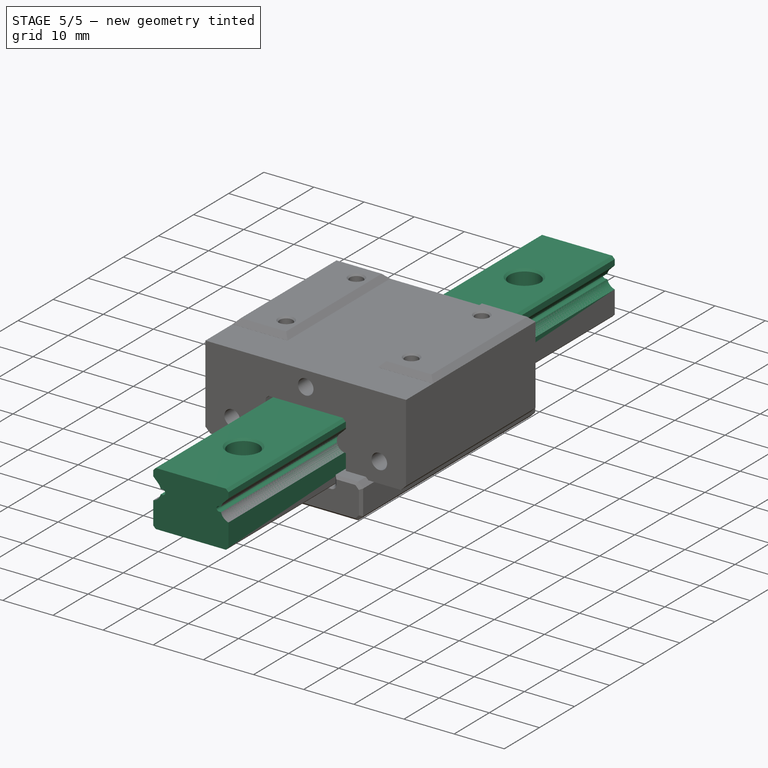
[diagram: stage 5 of 5 — iso view after this stage's code; geometry added in this stage tinted green]
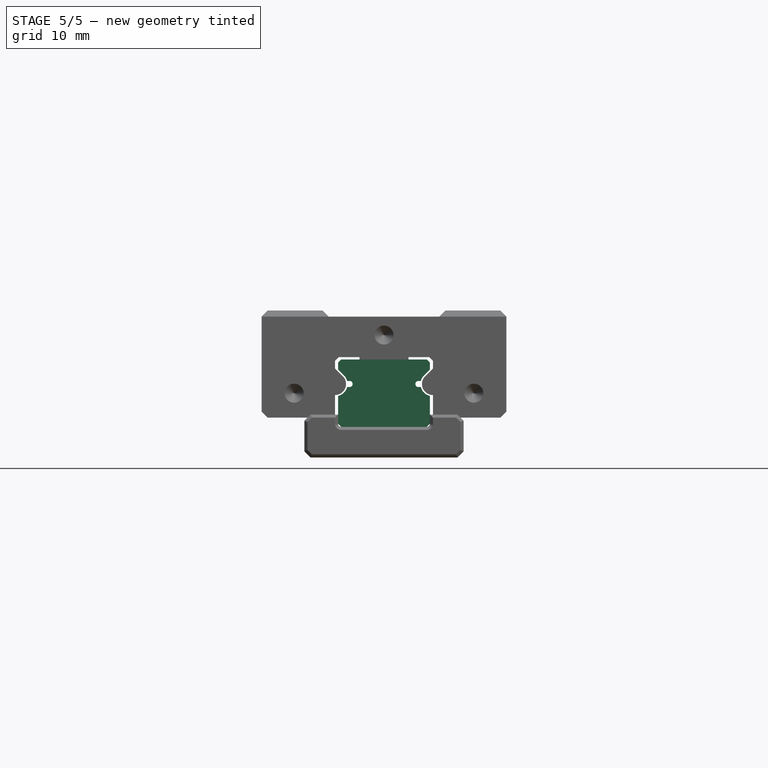
[diagram: stage 5 of 5 — front view after this stage's code; geometry added in this stage tinted green]
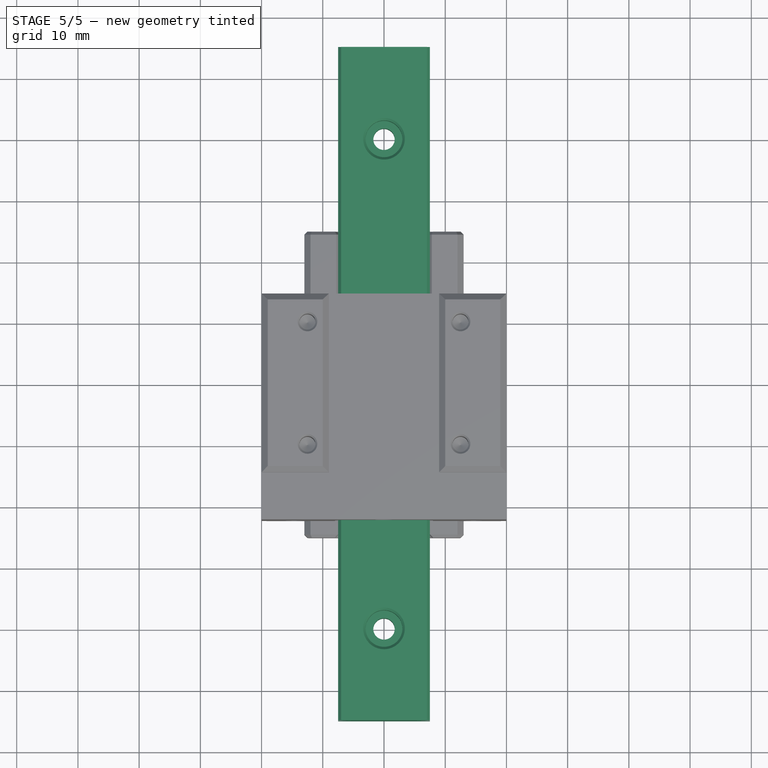
[diagram: stage 5 of 5 — top view after this stage's code; geometry added in this stage tinted green]
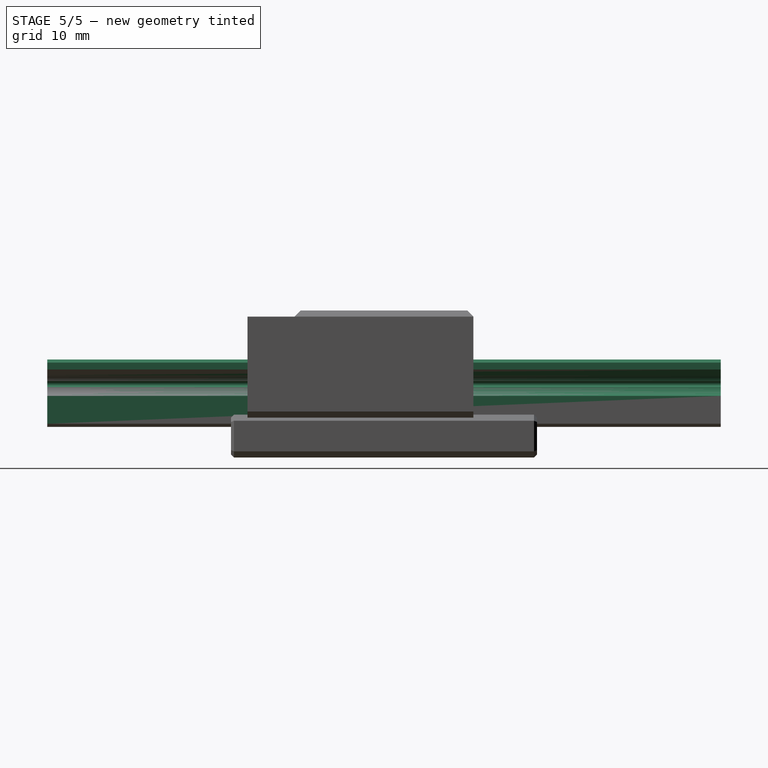
[diagram: stage 5 of 5 — right view after this stage's code; geometry added in this stage tinted green]
FEATURE [Sketcher::SketchObject] Sketch002  label="MasterSketch_BallsGap"
  MapMode = 5
  Placement = pos=(0,0,0) rot=(1,0,0;1.5708rad)
  Support = -> [XZ_Plane]
  expr: Constraints.ballHelper_dia = Constraints.ball_dia + 0.3mm
  sketch-geometry (6):
    g0: Circle CenterX=-8 CenterY=0 CenterZ=0 NormalX=0 NormalY=0 NormalZ=1 AngleXU=0 Radius=2
    g1: Circle CenterX=8 CenterY=0 CenterZ=0 NormalX=0 NormalY=0 NormalZ=1 AngleXU=0 Radius=2
    g2: LineSegment [constr] StartX=-10.16 StartY=0 StartZ=0 EndX=-10.16 EndY=-5 EndZ=0
    g3: LineSegment [constr] StartX=-10 StartY=0 StartZ=0 EndX=-10 EndY=-5 EndZ=0
    g4: Circle [constr] CenterX=-8 CenterY=0 CenterZ=0 NormalX=0 NormalY=0 NormalZ=1 AngleXU=0 Radius=2.15
    g5: Circle [constr] CenterX=8 CenterY=0 CenterZ=0 NormalX=0 NormalY=0 NormalZ=1 AngleXU=0 Radius=2.15
  constraints (16):
    c: PointOnObject(g0,g-1)
    c: Diameter(g0) = 4  'ball_dia'
    c: Equal(g0,g1)
    c: DistanceX(g0,g1) = 16  'ball_dist'
    c: Symmetric(g0,g1,g-2)
    c: PointOnObject(g2,g-1)
    c: Vertical(g2)
    c: Vertical(g3)
    c: Equal(g3,g2)
    c: DistanceX(g2,g3) = 0.16  'gap_len'
    c: Coincident(g4,g0)
    c: Coincident(g5,g1)
    c: Equal(g4,g5)
    c: Diameter(g4) = 4.3  'ballHelper_dia'
    c: PointOnObject(g3,g-1)
    c: PointOnObject(g3,g0)
FEATURE [Sketcher::SketchObject] Sketch  label="MasterSketch_RailProfil"
  MapMode = 5
  Placement = pos=(0,0,0) rot=(1,0,0;1.5708rad)
  Support = -> [XZ_Plane]
  expr: Constraints[21] = MasterSketch_BallsGap.Constraints.ball_dia
  expr: Constraints[20] = MasterSketch_BallsGap.Constraints.ball_dist - Sketch002.Constraints.gap_len / 2
  sketch-geometry (32):
    g0: LineSegment StartX=-7 StartY=-7 StartZ=0 EndX=7 EndY=-7 EndZ=0
    g1: LineSegment StartX=7.5 StartY=3.5 StartZ=0 EndX=7 EndY=4 EndZ=0
    g2: LineSegment StartX=7 StartY=4 StartZ=0 EndX=-7 EndY=4 EndZ=0
    g3: LineSegment [constr] StartX=7 StartY=4 StartZ=0 EndX=7.5 EndY=4 EndZ=0
    g4: LineSegment [constr] StartX=7.5 StartY=3.5 StartZ=0 EndX=7.5 EndY=4 EndZ=0
    g5: LineSegment StartX=-7.5 StartY=-6.5 StartZ=0 EndX=-7.5 EndY=-1.94638 EndZ=0
    g6: LineSegment StartX=7.5 StartY=-6.5 StartZ=0 EndX=7.5 EndY=-1.94638 EndZ=0
    g7: LineSegment [constr] StartX=-7 StartY=4 StartZ=0 EndX=-7.5 EndY=4 EndZ=0
    g8: LineSegment StartX=7.5 StartY=3.5 StartZ=0 EndX=7.5 EndY=2.36843 EndZ=0
    g9: ArcOfCircle CenterX=-5.62351 CenterY=0 CenterZ=0 NormalX=0 NormalY=0 NormalZ=1 AngleXU=0 Radius=0.5 StartAngle=4.71239 EndAngle=7.85398
    g10: ArcOfCircle CenterX=5.62351 CenterY=0 CenterZ=0 NormalX=0 NormalY=0 NormalZ=1 AngleXU=0 Radius=0.5 StartAngle=1.5708 EndAngle=4.71239
    g11: Circle [constr] CenterX=-7.96 CenterY=0 CenterZ=0 NormalX=0 NormalY=0 NormalZ=1 AngleXU=0 Radius=2
    g12: Circle [constr] CenterX=7.96 CenterY=0 CenterZ=0 NormalX=0 NormalY=0 NormalZ=1 AngleXU=0 Radius=2
    g13: LineSegment [constr] StartX=-7.5 StartY=4 StartZ=0 EndX=-7.5 EndY=3.5 EndZ=0
    g14: LineSegment StartX=-7 StartY=4 StartZ=0 EndX=-7.5 EndY=3.5 EndZ=0
    g15: LineSegment StartX=-7.5 StartY=3.5 StartZ=0 EndX=-7.5 EndY=2.36843 EndZ=0
    g16: LineSegment StartX=-5.62351 StartY=0.5 StartZ=0 EndX=-6.02351 EndY=0.5 EndZ=0
    g17: LineSegment StartX=-5.62351 StartY=-0.5 StartZ=0 EndX=-6.02351 EndY=-0.5 EndZ=0
    g18: LineSegment StartX=5.62351 StartY=0.5 StartZ=0 EndX=6.02351 EndY=0.5 EndZ=0
    g19: LineSegment StartX=5.62351 StartY=-0.5 StartZ=0 EndX=6.02351 EndY=-0.5 EndZ=0
    g20: ArcOfCircle CenterX=-7.96 CenterY=0 CenterZ=0 NormalX=0 NormalY=0 NormalZ=1 AngleXU=0 Radius=2 StartAngle=0.25268 EndAngle=0.785398
    g21: ArcOfCircle CenterX=-7.96 CenterY=0 CenterZ=0 NormalX=0 NormalY=0 NormalZ=1 AngleXU=0 Radius=2 StartAngle=4.94447 EndAngle=6.03051
    g22: ArcOfCircle CenterX=7.96 CenterY=0 CenterZ=0 NormalX=0 NormalY=0 NormalZ=1 AngleXU=0 Radius=2 StartAngle=2.35619 EndAngle=2.88891
    g23: ArcOfCircle CenterX=7.96 CenterY=0 CenterZ=0 NormalX=0 NormalY=0 NormalZ=1 AngleXU=0 Radius=2 StartAngle=3.39427 EndAngle=4.48031
    g24: LineSegment StartX=-7.5 StartY=-6.5 StartZ=0 EndX=-7 EndY=-7 EndZ=0
    g25: LineSegment StartX=7.5 StartY=-6.5 StartZ=0 EndX=7 EndY=-7 EndZ=0
    g26: LineSegment [constr] StartX=-7.5 StartY=-6.5 StartZ=0 EndX=-7.5 EndY=-7 EndZ=0
    g27: LineSegment [constr] StartX=-7 StartY=-7 StartZ=0 EndX=-7.5 EndY=-7 EndZ=0
    g28: LineSegment [constr] StartX=7.5 StartY=-6.5 StartZ=0 EndX=7.5 EndY=-7 EndZ=0
    g29: LineSegment [constr] StartX=7 StartY=-7 StartZ=0 EndX=7.5 EndY=-7 EndZ=0
    g30: LineSegment StartX=6.54579 StartY=1.41421 StartZ=0 EndX=7.5 EndY=2.36843 EndZ=0
    g31: LineSegment StartX=-6.54579 StartY=1.41421 StartZ=0 EndX=-7.5 EndY=2.36843 EndZ=0
  constraints (88):
    c: Coincident(g1,g2)
    c: Symmetric(g1,g2,g-2)
    c: Coincident(g3,g1)
    c: Horizontal(g3)
    c: Coincident(g4,g3)
    c: Vertical(g4)
    c: Equal(g4,g3)
    c: Vertical(g5)
    c: Vertical(g6)
    c: Coincident(g7,g2)
    c: Horizontal(g7)
    c: Equal(g3,g7)
    c: Coincident(g1,g4)
    c: Coincident(g8,g1)
    c: PointOnObject(g9,g-1)
    c: Symmetric(g10,g9,g-2)
    c: PointOnObject(g11,g-1)
    c: Equal(g11,g12)
    c: Symmetric(g11,g12,g-2)
    c: Equal(g9,g10)
    c: DistanceX(g11,g12) = 15.92
    c: Diameter(g12) = 4
    c: Coincident(g13,g7)
    c: Vertical(g13)
    c: Coincident(g14,g2)
    c: Coincident(g14,g13)
    c: Coincident(g15,g14)
    c: Vertical(g15)
    c: Equal(g7,g13)
    c: Diameter(g9) = 1
    c: Coincident(g16,g9)
    c: Horizontal(g16)
    c: Coincident(g17,g9)
    c: Horizontal(g17)
    c: Coincident(g18,g10)
    c: Coincident(g19,g10)
    c: Horizontal(g19)
    c: Horizontal(g18)
    c: Tangent(g18,g10)
    c: Tangent(g19,g10)
    c: Tangent(g9,g16)
    c: Tangent(g9,g17)
    c: Vertical(g8)
    c: Coincident(g20,g11)
    c: Coincident(g21,g20)
    c: Coincident(g22,g12)
    c: Coincident(g23,g22)
    c: Coincident(g5,g21)
    c: Coincident(g6,g23)
    c: Coincident(g20,g16)
    c: Coincident(g17,g21)
    c: Coincident(g22,g18)
    c: Coincident(g23,g19)
    c: Equal(g12,g22)
    c: Equal(g22,g23)
    c: Equal(g11,g20)
    c: Equal(g20,g21)
    c: DistanceY(g20,g7) = 4
    c: Coincident(g5,g24)
    c: Coincident(g0,g24)
    c: Coincident(g6,g25)
    c: Coincident(g0,g25)
    c: Coincident(g26,g5)
    c: Vertical(g26)
    c: Coincident(g27,g0)
    c: Coincident(g27,g26)
    c: Horizontal(g27)
    c: Coincident(g28,g6)
    c: Coincident(g29,g0)
    c: Coincident(g29,g28)
    c: Horizontal(g29)
    c: Vertical(g28)
    c: Symmetric(g28,g26,g-2)
    c: DistanceX(g26,g28) = 15
    c: DistanceX(g17,g17) = 0.4
    c: Equal(g28,g29)
    c: Equal(g29,g27)
    c: Equal(g27,g26)
    c: DistanceY(g28,g28) = 0.5
    c: DistanceY(g4,g4) = 0.5
    c: Angle(g31,g2) = 0.785398
    c: Angle(g2,g30) = 0.785398
    c: Coincident(g8,g30)
    c: Coincident(g15,g31)
    c: PointOnObject(g8,g6)
    c: Tangent(g30,g22) = 1.5708
    c: Tangent(g31,g20) = -1.5708
    c: DistanceY(g26,g-1) = 7
FEATURE [Sketcher::SketchObject] Sketch017  label="MasterSketch_SliderProfil"
  MapMode = 5
  Placement = pos=(0,0,0) rot=(1,0,0;1.5708rad)
  Support = -> [XZ_Plane]
  expr: Constraints[3] = MasterSketch_BallsGap.Constraints.ball_dia
  expr: Constraints[68] = Sketch002.Constraints.ballHelper_dia
  expr: Constraints.ball_dist = MasterSketch_BallsGap.Constraints.ball_dist + Sketch002.Constraints.gap_len / 2
  sketch-geometry (46):
    g0: Circle [constr] CenterX=-8.04 CenterY=0 CenterZ=0 NormalX=0 NormalY=0 NormalZ=1 AngleXU=0 Radius=2
    g1: Circle [constr] CenterX=8.04 CenterY=0 CenterZ=0 NormalX=0 NormalY=0 NormalZ=1 AngleXU=0 Radius=2
    g2: ArcOfCircle CenterX=-8.04 CenterY=0 CenterZ=0 NormalX=0 NormalY=0 NormalZ=1 AngleXU=0 Radius=2 StartAngle=1.80287 EndAngle=3.92699
    g3: ArcOfCircle CenterX=8.04 CenterY=0 CenterZ=0 NormalX=0 NormalY=0 NormalZ=1 AngleXU=0 Radius=2 StartAngle=5.49779 EndAngle=7.6219
    g4: LineSegment StartX=8.5 StartY=-2.36843 StartZ=0 EndX=8.5 EndY=-5.5 EndZ=0
    g5: LineSegment StartX=8.5 StartY=-5.5 StartZ=0 EndX=19 EndY=-5.5 EndZ=0
    g6: LineSegment StartX=19 StartY=-5.5 StartZ=0 EndX=20 EndY=-4.5 EndZ=0
    g7: LineSegment StartX=20 StartY=-4.5 StartZ=0 EndX=20 EndY=11 EndZ=0
    g8: LineSegment StartX=20 StartY=11 StartZ=0 EndX=19 EndY=12 EndZ=0
    g9: LineSegment StartX=19 StartY=12 StartZ=0 EndX=10 EndY=12 EndZ=0
    g10: LineSegment StartX=-19 StartY=12 StartZ=0 EndX=-20 EndY=11 EndZ=0
    g11: LineSegment StartX=-20 StartY=11 StartZ=0 EndX=-20 EndY=-4.5 EndZ=0
    g12: LineSegment StartX=-20 StartY=-4.5 StartZ=0 EndX=-19 EndY=-5.5 EndZ=0
    g13: LineSegment StartX=-19 StartY=-5.5 StartZ=0 EndX=-8.5 EndY=-5.5 EndZ=0
    g14: LineSegment StartX=-8.5 StartY=-5.5 StartZ=0 EndX=-8.5 EndY=-2.36843 EndZ=0
    g15: LineSegment StartX=-8.5 StartY=1.94638 StartZ=0 EndX=-8.5 EndY=4 EndZ=0
    g16: ArcOfCircle CenterX=-7.5 CenterY=4 CenterZ=0 NormalX=0 NormalY=0 NormalZ=1 AngleXU=0 Radius=1 StartAngle=1.5708 EndAngle=3.14159
    g17: LineSegment StartX=-7.5 StartY=5 StartZ=0 EndX=7.5 EndY=5 EndZ=0
    g18: ArcOfCircle CenterX=7.5 CenterY=4 CenterZ=0 NormalX=0 NormalY=0 NormalZ=1 AngleXU=0 Radius=1 StartAngle=0 EndAngle=1.5708
    g19: LineSegment StartX=8.5 StartY=4 StartZ=0 EndX=8.5 EndY=1.94638 EndZ=0
    g20: LineSegment [constr] StartX=-20 StartY=11 StartZ=0 EndX=-20 EndY=12 EndZ=0
    g21: LineSegment [constr] StartX=-20 StartY=12 StartZ=0 EndX=-19 EndY=12 EndZ=0
    g22: LineSegment [constr] StartX=20 StartY=11 StartZ=0 EndX=20 EndY=12 EndZ=0
    g23: LineSegment [constr] StartX=19 StartY=12 StartZ=0 EndX=20 EndY=12 EndZ=0
    g24: LineSegment [constr] StartX=20 StartY=-4.5 StartZ=0 EndX=20 EndY=-5.5 EndZ=0
    g25: LineSegment [constr] StartX=19 StartY=-5.5 StartZ=0 EndX=20 EndY=-5.5 EndZ=0
    g26: LineSegment [constr] StartX=-20 StartY=-4.5 StartZ=0 EndX=-20 EndY=-5.5 EndZ=0
    g27: LineSegment [constr] StartX=-20 StartY=-5.5 StartZ=0 EndX=-19 EndY=-5.5 EndZ=0
    g28: Circle CenterX=-16.7003 CenterY=5 CenterZ=0 NormalX=0 NormalY=0 NormalZ=1 AngleXU=0 Radius=2.15
    g29: LineSegment StartX=-10 StartY=12 StartZ=0 EndX=-9 EndY=11 EndZ=0
    g30: LineSegment StartX=-9 StartY=11 StartZ=0 EndX=9 EndY=11 EndZ=0
    g31: LineSegment StartX=9 StartY=11 StartZ=0 EndX=10 EndY=12 EndZ=0
    g32: LineSegment StartX=-10 StartY=12 StartZ=0 EndX=-19 EndY=12 EndZ=0
    g33: LineSegment [constr] StartX=-9 StartY=11 StartZ=0 EndX=-9 EndY=12 EndZ=0
    g34: LineSegment [constr] StartX=-10 StartY=12 StartZ=0 EndX=-9 EndY=12 EndZ=0
    g35: LineSegment [constr] StartX=10 StartY=12 StartZ=0 EndX=9 EndY=12 EndZ=0
    g36: LineSegment [constr] StartX=9 StartY=11 StartZ=0 EndX=9 EndY=12 EndZ=0
    g37: LineSegment StartX=-9.45421 StartY=-1.41421 StartZ=0 EndX=-8.5 EndY=-2.36843 EndZ=0
    g38: LineSegment StartX=9.45421 StartY=-1.41421 StartZ=0 EndX=8.5 EndY=-2.36843 EndZ=0
    g39: LineSegment [constr] StartX=-8.04 StartY=0 StartZ=0 EndX=-16.7003 EndY=5 EndZ=0
    g40: Circle CenterX=16.7003 CenterY=5 CenterZ=0 NormalX=0 NormalY=0 NormalZ=1 AngleXU=0 Radius=2.15
    g41: Circle CenterX=-14.6795 CenterY=-1.5 CenterZ=0 NormalX=0 NormalY=0 NormalZ=1 AngleXU=0 Radius=1.5
    g42: Circle CenterX=14.6795 CenterY=-1.5 CenterZ=0 NormalX=0 NormalY=0 NormalZ=1 AngleXU=0 Radius=1.5
    g43: LineSegment [constr] StartX=-12.3701 StartY=2.5 StartZ=0 EndX=-13.8135 EndY=0 EndZ=0
    g44: Circle CenterX=0 CenterY=8 CenterZ=0 NormalX=0 NormalY=0 NormalZ=1 AngleXU=0 Radius=1.5
    g45: LineSegment [constr] StartX=0 StartY=11 StartZ=0 EndX=0 EndY=5 EndZ=0
  constraints (123):
    c: PointOnObject(g0,g-1)
    c: Symmetric(g0,g1,g-2)
    c: DistanceX(g0,g1) = 16.08  'ball_dist'
    c: Diameter(g0) = 4
    c: Equal(g0,g1)
    c: Coincident(g2,g0)
    c: Coincident(g3,g1)
    c: Vertical(g4)
    c: Coincident(g4,g5)
    c: Horizontal(g5)
    c: Coincident(g5,g6)
    c: Coincident(g6,g7)
    c: Vertical(g7)
    c: Coincident(g7,g8)
    c: Coincident(g8,g9)
    c: Horizontal(g9)
    c: Coincident(g32,g10)
    c: Coincident(g10,g11)
    c: Vertical(g11)
    c: Coincident(g11,g12)
    c: Horizontal(g13)
    c: Coincident(g13,g14)
    c: Vertical(g14)
    c: Coincident(g2,g15)
    c: Vertical(g15)
    c: Tangent(g15,g16) = 1.5708
    c: Coincident(g16,g17)
    c: Horizontal(g17)
    c: Tangent(g17,g18) = 1.5708
    c: Tangent(g18,g19) = 1.5708
    c: Coincident(g19,g3)
    c: Vertical(g19)
    c: Tangent(g17,g16)
    c: DistanceY(g-1,g32) = 12  'hight2'
    c: Equal(g0,g2)
    c: Equal(g1,g3)
    c: Coincident(g20,g10)
    c: Vertical(g20)
    c: Coincident(g21,g20)
    c: Coincident(g21,g32)
    c: Horizontal(g21)
    c: Coincident(g22,g7)
    c: Vertical(g22)
    c: Coincident(g23,g8)
    c: Coincident(g23,g22)
    c: Horizontal(g23)
    c: Coincident(g24,g6)
    c: Vertical(g24)
    c: Coincident(g25,g5)
    c: Coincident(g25,g24)
    c: Horizontal(g25)
    c: Coincident(g26,g11)
    c: Vertical(g26)
    c: Horizontal(g27)
    c: Coincident(g13,g12)
    c: Coincident(g27,g12)
    c: Coincident(g26,g27)
    c: Equal(g22,g24)
    c: Equal(g24,g25)
    c: Equal(g25,g27)
    c: Equal(g27,g26)
    c: Equal(g26,g20)
    c: Equal(g20,g21)
    c: Equal(g21,g23)
    c: DistanceY(g22,g22) = 1
    c: Symmetric(g26,g24,g-2)
    c: Radius(g16) = 1
    c: Symmetric(g16,g18,g-2)
    c: Diameter(g28) = 4.3
    c: DistanceY(g-1,g17) = 5
    c: DistanceX(g20,g22) = 40
    c: Coincident(g29,g30)
    c: Coincident(g30,g31)
    c: Symmetric(g29,g30,g-2)
    c: Coincident(g32,g29)
    c: Tangent(g9,g32)
    c: Coincident(g31,g9)
    c: Coincident(g33,g29)
    c: Vertical(g33)
    c: Coincident(g34,g29)
    c: Coincident(g34,g33)
    c: Coincident(g35,g9)
    c: Horizontal(g35)
    c: Coincident(g36,g30)
    c: Coincident(g36,g35)
    c: Vertical(g36)
    c: Equal(g22,g35)
    c: Equal(g35,g36)
    c: Equal(g36,g33)
    c: Equal(g33,g34)
    c: DistanceX(g33,g35) = 18
    c: DistanceY(g26,g-1) = 5.5
    c: Coincident(g14,g37)
    c: Coincident(g4,g38)
    c: DistanceX(g15,g18) = 17
    c: PointOnObject(g14,g15)
    c: PointOnObject(g4,g19)
    c: Angle(g37,g13) = 0.785398
    c: Angle(g5,g38) = 0.785398
    c: Coincident(g37,g2)
    c: Coincident(g38,g3)
    c: Tangent(g1,g38)
    c: Tangent(g37,g0)
    c: Coincident(g39,g2)
    c: Coincident(g39,g28)
    c: Angle(g-1,g39) = 2.61799
    c: Equal(g28,g40)
    c: Symmetric(g28,g40,g-2)
    c: Symmetric(g41,g42,g-2)
    c: PointOnObject(g43,g39)
    c: PointOnObject(g43,g-1)
    c: Symmetric(g2,g28,g43)
    c: PointOnObject(g41,g43)
    c: Equal(g41,g42)
    c: Diameter(g42) = 3
    c: Distance(g39) = 10
    c: DistanceY(g41,g-1) = 1.5
    c: PointOnObject(g44,g-2)
    c: PointOnObject(g45,g30)
    c: PointOnObject(g45,g17)
    c: Vertical(g45)
    c: Symmetric(g45,g45,g44)
    c: Equal(g41,g44)
FEATURE [PartDesign::ShapeBinder] ShapeBinder001  label="MS-Rail"
  Placement = pos=(0,0,0) rot=(1,0,0;1.5708rad)
  Support = -> [Sketch]
  TraceSupport = false
FEATURE [Sketcher::SketchObject] Sketch014
  ExternalGeometry = -> [ShapeBinder001]
  MapMode = 5
  Placement = pos=(0,0,0) rot=(1,0,0;1.5708rad)
  Support = -> [XZ_Plane]
  sketch-geometry (22):
    g0: ArcOfCircle CenterX=-5.62351 CenterY=0 CenterZ=0 NormalX=0 NormalY=0 NormalZ=1 AngleXU=0 Radius=0.5 StartAngle=4.71239 EndAngle=7.85398
    g1: ArcOfCircle CenterX=-7.96 CenterY=0 CenterZ=0 NormalX=0 NormalY=0 NormalZ=1 AngleXU=0 Radius=2 StartAngle=4.94447 EndAngle=6.03051
    g2: ArcOfCircle CenterX=-7.96 CenterY=0 CenterZ=0 NormalX=0 NormalY=0 NormalZ=1 AngleXU=0 Radius=2 StartAngle=0.25268 EndAngle=0.785398
    g3: ArcOfCircle CenterX=7.96 CenterY=0 CenterZ=0 NormalX=0 NormalY=0 NormalZ=1 AngleXU=0 Radius=2 StartAngle=2.35619 EndAngle=2.88891
    g4: ArcOfCircle CenterX=7.96 CenterY=0 CenterZ=0 NormalX=0 NormalY=0 NormalZ=1 AngleXU=0 Radius=2 StartAngle=3.39427 EndAngle=4.48031
    g5: LineSegment StartX=-6.02351 StartY=0.5 StartZ=0 EndX=-5.62351 EndY=0.5 EndZ=0
    g6: LineSegment StartX=-6.02351 StartY=-0.5 StartZ=0 EndX=-5.62351 EndY=-0.5 EndZ=0
    g7: LineSegment StartX=5.62351 StartY=0.5 StartZ=0 EndX=6.02351 EndY=0.5 EndZ=0
    g8: LineSegment StartX=5.62351 StartY=-0.5 StartZ=0 EndX=6.02351 EndY=-0.5 EndZ=0
    g9: ArcOfCircle CenterX=5.62351 CenterY=0 CenterZ=0 NormalX=0 NormalY=0 NormalZ=1 AngleXU=0 Radius=0.5 StartAngle=1.5708 EndAngle=4.71239
    g10: LineSegment StartX=6.54579 StartY=1.41421 StartZ=0 EndX=7.5 EndY=2.36843 EndZ=0
    g11: LineSegment StartX=7.5 StartY=2.36843 StartZ=0 EndX=7.5 EndY=3.5 EndZ=0
    g12: LineSegment StartX=7.5 StartY=3.5 StartZ=0 EndX=7 EndY=4 EndZ=0
    g13: LineSegment StartX=7 StartY=4 StartZ=0 EndX=-7 EndY=4 EndZ=0
    g14: LineSegment StartX=-7 StartY=4 StartZ=0 EndX=-7.5 EndY=3.5 EndZ=0
    g15: LineSegment StartX=-7.5 StartY=3.5 StartZ=0 EndX=-7.5 EndY=2.36843 EndZ=0
    g16: LineSegment StartX=-7.5 StartY=2.36843 StartZ=0 EndX=-6.54579 EndY=1.41421 EndZ=0
    g17: LineSegment StartX=-7.5 StartY=-1.94638 StartZ=0 EndX=-7.5 EndY=-6.5 EndZ=0
    g18: LineSegment StartX=-7.5 StartY=-6.5 StartZ=0 EndX=-7 EndY=-7 EndZ=0
    g19: LineSegment StartX=-7 StartY=-7 StartZ=0 EndX=7 EndY=-7 EndZ=0
    g20: LineSegment StartX=7 StartY=-7 StartZ=0 EndX=7.5 EndY=-6.5 EndZ=0
    g21: LineSegment StartX=7.5 StartY=-6.5 StartZ=0 EndX=7.5 EndY=-1.94638 EndZ=0
  constraints (50):
    c: Coincident(g0,g-3)
    c: Coincident(g0,g-3)
    c: Coincident(g0,g-3)
    c: Coincident(g1,g-5)
    c: Coincident(g1,g-5)
    c: Coincident(g2,g1)
    c: Coincident(g2,g-4)
    c: Coincident(g2,g-4)
    c: Coincident(g3,g-8)
    c: Coincident(g3,g-7)
    c: Coincident(g3,g-7)
    c: Coincident(g4,g3)
    c: Coincident(g4,g-8)
    c: Coincident(g4,g-8)
    c: Coincident(g1,g-5)
    c: Coincident(g5,g2)
    c: Coincident(g5,g0)
    c: Coincident(g6,g1)
    c: Coincident(g6,g0)
    c: Coincident(g7,g-6)
    c: Coincident(g7,g3)
    c: Coincident(g8,g-6)
    c: Coincident(g8,g4)
    c: Coincident(g9,g-6)
    c: Coincident(g9,g7)
    c: Coincident(g9,g8)
    c: Coincident(g10,g3)
    c: Coincident(g10,g-14)
    c: Coincident(g10,g11)
    c: Coincident(g11,g-13)
    c: Coincident(g11,g12)
    c: Coincident(g12,g-12)
    c: Coincident(g12,g13)
    c: Coincident(g13,g-11)
    c: Coincident(g13,g14)
    c: Coincident(g14,g-10)
    c: Coincident(g14,g15)
    c: Coincident(g15,g-9)
    c: Coincident(g15,g16)
    c: Coincident(g16,g2)
    c: Coincident(g1,g17)
    c: Coincident(g17,g-18)
    c: Coincident(g17,g18)
    c: Coincident(g18,g-17)
    c: Coincident(g18,g19)
    c: Coincident(g19,g-16)
    c: Coincident(g19,g20)
    c: Coincident(g20,g-15)
    c: Coincident(g20,g21)
    c: Coincident(g21,g4)
FEATURE [PartDesign::Pad] Pad
  Length = 110
  Length2 = 100
  Midplane = true
  Placement = pos=(0,0,0) rot=(1,0,0;1.5708rad)
  Profile = -> Sketch014
  Type = 0
FEATURE [Sketcher::SketchObject] Sketch015
  MapMode = 5
  Support = -> [XY_Plane]
  sketch-geometry (3):
    g0: Circle CenterX=0 CenterY=-40 CenterZ=0 NormalX=0 NormalY=0 NormalZ=1 AngleXU=0 Radius=1.75
    g1: Circle CenterX=0 CenterY=0 CenterZ=0 NormalX=0 NormalY=0 NormalZ=1 AngleXU=0 Radius=1.75
    g2: Circle CenterX=0 CenterY=40 CenterZ=0 NormalX=0 NormalY=0 NormalZ=1 AngleXU=0 Radius=1.75
  constraints (7):
    c: PointOnObject(g2,g-2)
    c: Coincident(g1,g-1)
    c: Symmetric(g0,g2,g-1)
    c: DistanceY(g0,g2) = 80
    c: Diameter(g2) = 3.5
    c: Equal(g2,g1)
    c: Equal(g2,g0)
FEATURE [PartDesign::Pocket] Pocket002
  BaseFeature = -> Pad
  Length = 5
  Length2 = 100
  Midplane = true
  Placement = pos=(0,0,0) rot=(1,0,0;1.5708rad)
  Profile = -> Sketch015
  Type = 1
FEATURE [Sketcher::SketchObject] Sketch016
  MapMode = 5
  Placement = pos=(0,-9e-16,4) rot=(0,0,1;3.14159rad)
  Support = -> [Pocket002]
  sketch-geometry (3):
    g0: Circle CenterX=0 CenterY=40 CenterZ=0 NormalX=0 NormalY=0 NormalZ=1 AngleXU=0 Radius=3
    g1: Circle CenterX=0 CenterY=0 CenterZ=0 NormalX=0 NormalY=0 NormalZ=1 AngleXU=0 Radius=3
    g2: Circle CenterX=0 CenterY=-40 CenterZ=0 NormalX=0 NormalY=0 NormalZ=1 AngleXU=0 Radius=3
  constraints (7):
    c: Coincident(g1,g-1)
    c: PointOnObject(g2,g-2)
    c: Symmetric(g2,g0,g-1)
    c: Diameter(g0) = 6
    c: Equal(g0,g1)
    c: Equal(g0,g2)
    c: DistanceY(g2,g0) = 80
FEATURE [PartDesign::Pocket] Pocket003
  BaseFeature = -> Pocket002
  Length = 4.5
  Length2 = 100
  Placement = pos=(0,0,0) rot=(1,0,0;1.5708rad)
  Profile = -> Sketch016
  Type = 0
FEATURE [PartDesign::Chamfer] Chamfer002
  Base = -> Pocket003 [Edge70,Edge71,Edge72,Edge57,Edge58,Edge59]
  BaseFeature = -> Pocket003
  Placement = pos=(0,0,0) rot=(1,0,0;1.5708rad)
  Size = 0.4
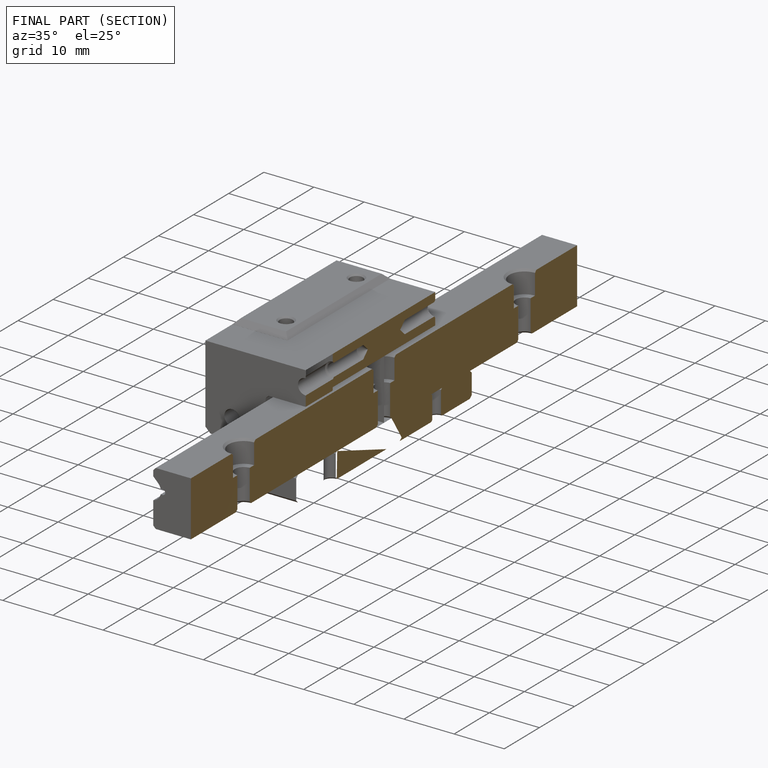
[diagram: finished part — half-section view (interior)]
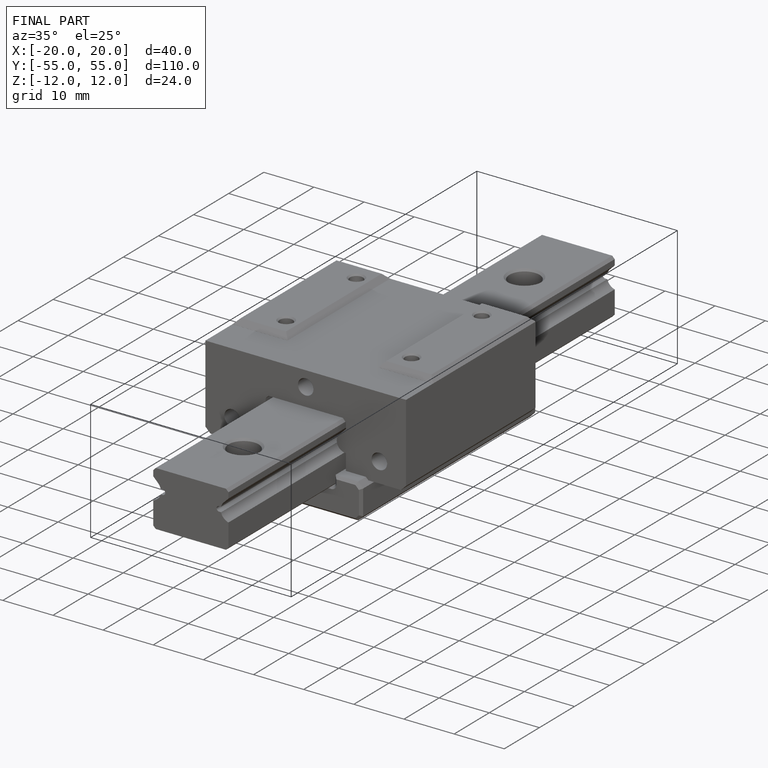
[diagram: finished part — iso view with bounding-box wireframe]
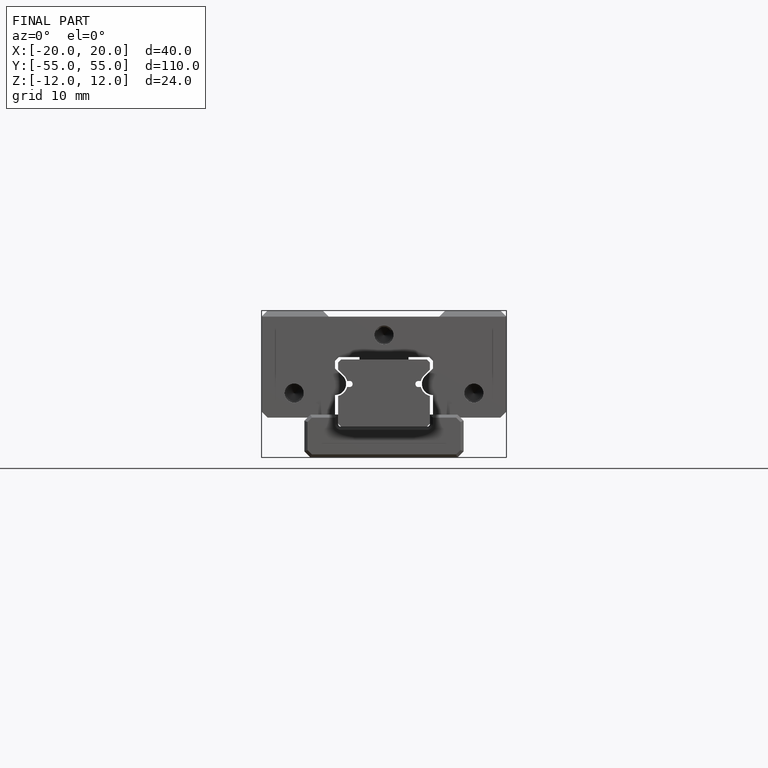
[diagram: finished part — front view with bounding-box wireframe]
